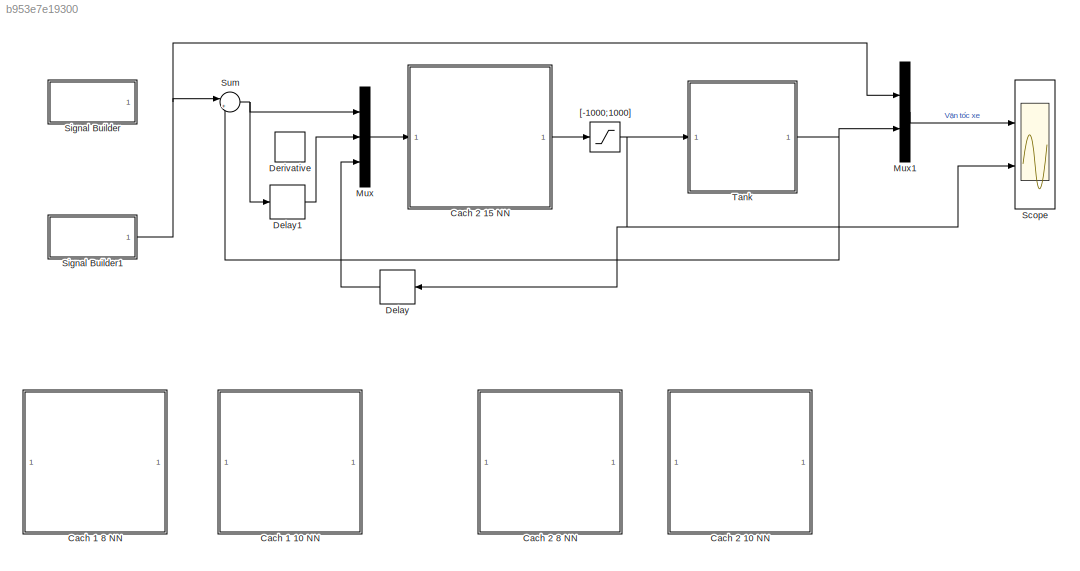
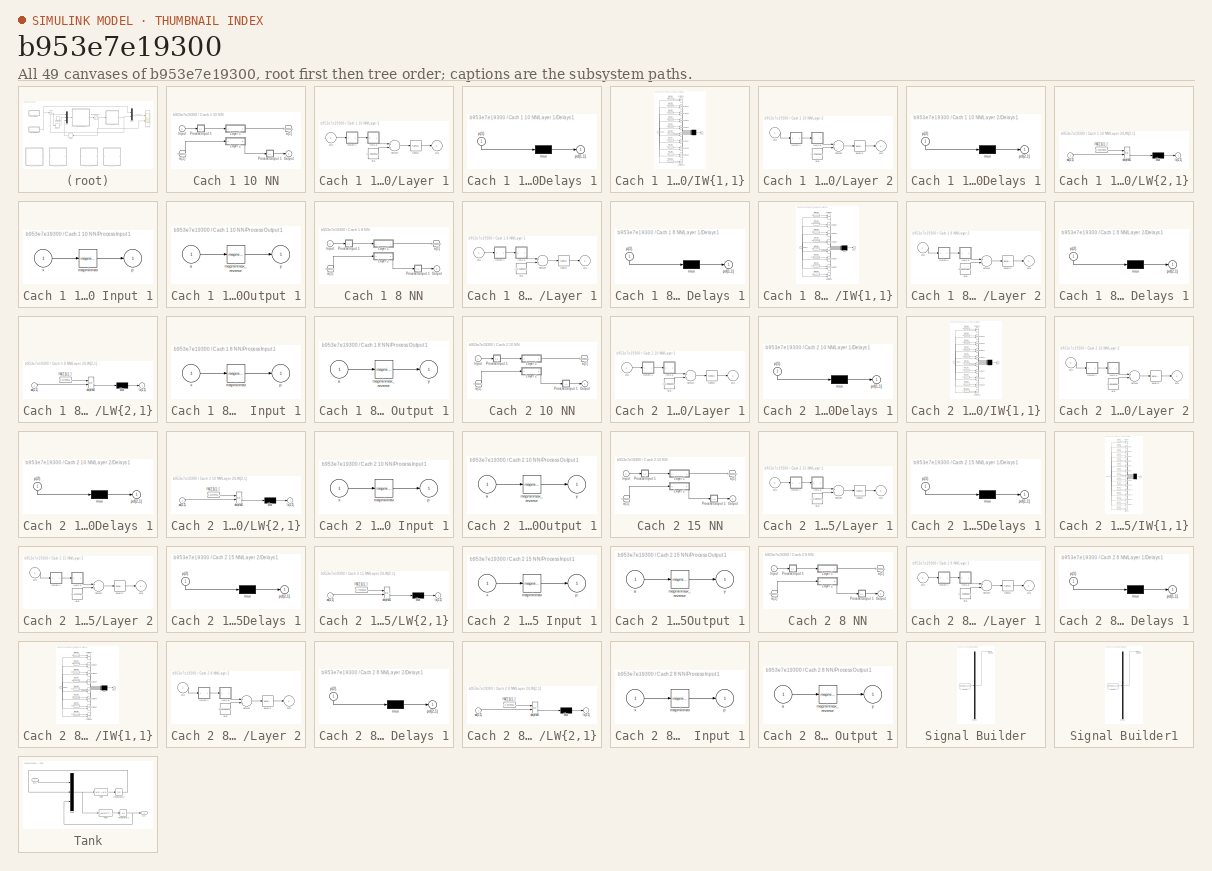
[diagram: thumbnail index - all 49 canvases of the model, root first then tree order]
MODEL slx_b953e7e19300
KIND model
CONFIG AbsTol = auto
CONFIG EnableMultiTasking = off
CONFIG FixedStep = 0.1
CONFIG MaxStep = auto
CONFIG MinStep = auto
CONFIG RelTol = 1e-3
CONFIG SampleTimeConstraint = Unconstrained
CONFIG Solver = ode4
CONFIG SolverName = ode4
CONFIG StartTime = 0.0
CONFIG StopTime = 3000
WORKSPACE source: MAT-file member
WORKSPACE MCOS: class17 (value not decoded)
BLOCK [SubSystem] Cach 1 10 NN
  Ports = [1, 1]
  RequestExecContextInheritance = off
BLOCK [From] Cach 1 10 NN/ a{1} 
  GotoTag = feedback1
BLOCK [Inport] Cach 1 10 NN/Input
  IconDisplay = Port number
  PortDimensions = 3
BLOCK [SubSystem] Cach 1 10 NN/Layer 1
  Ports = [1, 1]
  RequestExecContextInheritance = off
BLOCK [SubSystem] Cach 1 10 NN/Layer 1/Delays 1
  Ports = [1, 1]
  RequestExecContextInheritance = off
BLOCK [Mux] Cach 1 10 NN/Layer 1/Delays 1/mux
  Inputs = 1
  Ports = [1, 1]
BLOCK [Outport] Cach 1 10 NN/Layer 1/Delays 1/pd{1,1}
  IconDisplay = Port number
BLOCK [Inport] Cach 1 10 NN/Layer 1/Delays 1/p{1}
  IconDisplay = Port number
  PortDimensions = 3
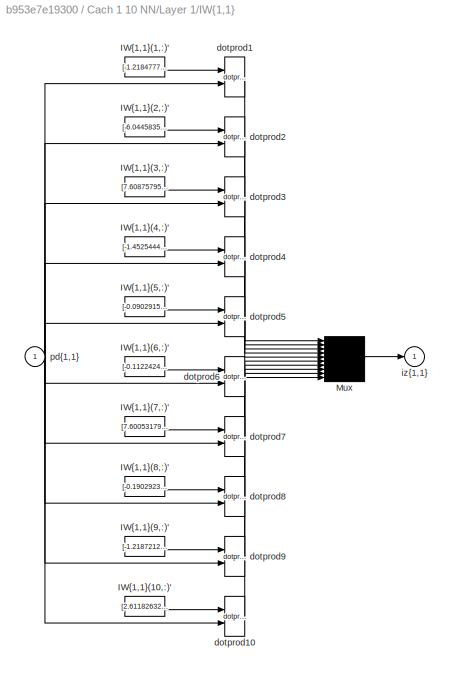
BLOCK [SubSystem] Cach 1 10 NN/Layer 1/IW{1,1}
  Ports = [1, 1]
  RequestExecContextInheritance = off
BLOCK [Constant] Cach 1 10 NN/Layer 1/IW{1,1}/IW{1,1}(1,:)'
  Value = [-1.218477747195196858598364997305907309055328369140625;3.875981635481588138958386480226181447505950927734375;-5.8782711885449199229469741112552583217620849609375]
BLOCK [Constant] Cach 1 10 NN/Layer 1/IW{1,1}/IW{1,1}(10,:)'
  Value = [2.611826329161540005685537835233844816684722900390625;0.225376082828238677446819338001660071313381195068359375;6.80639492578795834987204216304235160350799560546875]
BLOCK [Constant] Cach 1 10 NN/Layer 1/IW{1,1}/IW{1,1}(2,:)'
  Value = [-6.044583506610191392383057973347604274749755859375;-1.3317611473147310530151798957376740872859954833984375;4.5013770079174602045668507344089448451995849609375]
BLOCK [Constant] Cach 1 10 NN/Layer 1/IW{1,1}/IW{1,1}(3,:)'
  Value = [7.60875795240743979519493223051540553569793701171875;11.0522973127783377123023456078954041004180908203125;0.50033678100525735832349027987220324575901031494140625]
BLOCK [Constant] Cach 1 10 NN/Layer 1/IW{1,1}/IW{1,1}(4,:)'
  Value = [-1.4525444528493116624900949318544007837772369384765625;-0.1308001576776449959016446200621430762112140655517578125;3.112993220831782537061371840536594390869140625]
BLOCK [Constant] Cach 1 10 NN/Layer 1/IW{1,1}/IW{1,1}(5,:)'
  Value = [-0.0902915474895989167425369714692351408302783966064453125;-0.017332559376478116897057901724110706709325313568115234375;-1.0557927149483605777646744172670878469944000244140625]
BLOCK [Constant] Cach 1 10 NN/Layer 1/IW{1,1}/IW{1,1}(6,:)'
  Value = [-0.1122424268552905390894380843747057951986789703369140625;-0.046083329798854370806804325866323779337108135223388671875;-1.3280683409711404596720285553601570427417755126953125]
BLOCK [Constant] Cach 1 10 NN/Layer 1/IW{1,1}/IW{1,1}(7,:)'
  Value = [7.60053179159857705826652818359434604644775390625;8.22184538532787456688311067409813404083251953125;0.481166860897941528474319738961639814078807830810546875]
BLOCK [Constant] Cach 1 10 NN/Layer 1/IW{1,1}/IW{1,1}(8,:)'
  Value = [-0.1902923024092835480036711715001729317009449005126953125;0.324541502591513875142226197567651979625225067138671875;-2.442389780796051734768070673453621566295623779296875]
BLOCK [Constant] Cach 1 10 NN/Layer 1/IW{1,1}/IW{1,1}(9,:)'
  Value = [-1.21872120744540612946593682863749563694000244140625;4.0628187147851750893323696800507605075836181640625;-6.0333084174631093077323384932242333889007568359375]
BLOCK [Mux] Cach 1 10 NN/Layer 1/IW{1,1}/Mux
  Inputs = 10
  Ports = [10, 1]
BLOCK [Reference] Cach 1 10 NN/Layer 1/IW{1,1}/dotprod1  REF=neural/Weight Functions/dotprod
  Ports = [2, 1]
  SourceBlock = neural/Weight Functions/dotprod
  SourceProductBaseCode = Missing
  SourceProductName = MATLAB Runtime - Deep Learning Toolbox
  SourceType = DOTPROD
BLOCK [Reference] Cach 1 10 NN/Layer 1/IW{1,1}/dotprod10  REF=neural/Weight Functions/dotprod
  Ports = [2, 1]
  SourceBlock = neural/Weight Functions/dotprod
  SourceProductBaseCode = Missing
  SourceProductName = MATLAB Runtime - Deep Learning Toolbox
  SourceType = DOTPROD
BLOCK [Reference] Cach 1 10 NN/Layer 1/IW{1,1}/dotprod2  REF=neural/Weight Functions/dotprod
  Ports = [2, 1]
  SourceBlock = neural/Weight Functions/dotprod
  SourceProductBaseCode = Missing
  SourceProductName = MATLAB Runtime - Deep Learning Toolbox
  SourceType = DOTPROD
BLOCK [Reference] Cach 1 10 NN/Layer 1/IW{1,1}/dotprod3  REF=neural/Weight Functions/dotprod
  Ports = [2, 1]
  SourceBlock = neural/Weight Functions/dotprod
  SourceProductBaseCode = Missing
  SourceProductName = MATLAB Runtime - Deep Learning Toolbox
  SourceType = DOTPROD
BLOCK [Reference] Cach 1 10 NN/Layer 1/IW{1,1}/dotprod4  REF=neural/Weight Functions/dotprod
  Ports = [2, 1]
  SourceBlock = neural/Weight Functions/dotprod
  SourceProductBaseCode = Missing
  SourceProductName = MATLAB Runtime - Deep Learning Toolbox
  SourceType = DOTPROD
BLOCK [Reference] Cach 1 10 NN/Layer 1/IW{1,1}/dotprod5  REF=neural/Weight Functions/dotprod
  Ports = [2, 1]
  SourceBlock = neural/Weight Functions/dotprod
  SourceProductBaseCode = Missing
  SourceProductName = MATLAB Runtime - Deep Learning Toolbox
  SourceType = DOTPROD
BLOCK [Reference] Cach 1 10 NN/Layer 1/IW{1,1}/dotprod6  REF=neural/Weight Functions/dotprod
  Ports = [2, 1]
  SourceBlock = neural/Weight Functions/dotprod
  SourceProductBaseCode = Missing
  SourceProductName = MATLAB Runtime - Deep Learning Toolbox
  SourceType = DOTPROD
BLOCK [Reference] Cach 1 10 NN/Layer 1/IW{1,1}/dotprod7  REF=neural/Weight Functions/dotprod
  Ports = [2, 1]
  SourceBlock = neural/Weight Functions/dotprod
  SourceProductBaseCode = Missing
  SourceProductName = MATLAB Runtime - Deep Learning Toolbox
  SourceType = DOTPROD
BLOCK [Reference] Cach 1 10 NN/Layer 1/IW{1,1}/dotprod8  REF=neural/Weight Functions/dotprod
  Ports = [2, 1]
  SourceBlock = neural/Weight Functions/dotprod
  SourceProductBaseCode = Missing
  SourceProductName = MATLAB Runtime - Deep Learning Toolbox
  SourceType = DOTPROD
BLOCK [Reference] Cach 1 10 NN/Layer 1/IW{1,1}/dotprod9  REF=neural/Weight Functions/dotprod
  Ports = [2, 1]
  SourceBlock = neural/Weight Functions/dotprod
  SourceProductBaseCode = Missing
  SourceProductName = MATLAB Runtime - Deep Learning Toolbox
  SourceType = DOTPROD
BLOCK [Outport] Cach 1 10 NN/Layer 1/IW{1,1}/iz{1,1}
  IconDisplay = Port number
BLOCK [Inport] Cach 1 10 NN/Layer 1/IW{1,1}/pd{1,1}
  IconDisplay = Port number
  PortDimensions = 3
BLOCK [Outport] Cach 1 10 NN/Layer 1/a{1}
  IconDisplay = Port number
  InitialOutput = [0;0;0;0;0;0;0;0;0;0]
BLOCK [Constant] Cach 1 10 NN/Layer 1/b{1}
  Value = [5.44821512164440679981680659693665802478790283203125;3.045321254820318568334869269165210425853729248046875;0.29430251096517390241302791764610446989536285400390625;3.78563500257704088625132499146275222301483154296875;0.14484358740354508210401718315551988780498504638671875;0.237553061280461552673415326353278942406177520751953125;0.67338581118412499382230862465803511440753936767578125;-0.80433768907...<+147ch>
BLOCK [Sum] Cach 1 10 NN/Layer 1/netsum
  Inputs = 2
  Ports = [2, 1]
BLOCK [Inport] Cach 1 10 NN/Layer 1/p{1}
  IconDisplay = Port number
  PortDimensions = 3
BLOCK [Reference] Cach 1 10 NN/Layer 1/tansig  REF=neural/Transfer Functions/tansig
  Ports = [1, 1]
  SourceBlock = neural/Transfer Functions/tansig
  SourceProductBaseCode = Missing
  SourceProductName = MATLAB Runtime - Deep Learning Toolbox
  SourceType = TANSIG
BLOCK [SubSystem] Cach 1 10 NN/Layer 2
  Ports = [1, 1]
  RequestExecContextInheritance = off
BLOCK [SubSystem] Cach 1 10 NN/Layer 2/Delays 1
  Ports = [1, 1]
  RequestExecContextInheritance = off
BLOCK [Mux] Cach 1 10 NN/Layer 2/Delays 1/mux
  Inputs = 1
  Ports = [1, 1]
BLOCK [Outport] Cach 1 10 NN/Layer 2/Delays 1/pd{2,1}
  IconDisplay = Port number
BLOCK [Inport] Cach 1 10 NN/Layer 2/Delays 1/p{2}
  IconDisplay = Port number
  PortDimensions = 10
BLOCK [SubSystem] Cach 1 10 NN/Layer 2/LW{2,1}
  Ports = [1, 1]
  RequestExecContextInheritance = off
BLOCK [Constant] Cach 1 10 NN/Layer 2/LW{2,1}/IW{2,1}(1,:)'
  Value = [1.0554483061455268710915333940647542476654052734375;0.0174331438965131847729228553589564398862421512603759765625;2.036149696035788991821391391567885875701904296875;0.427234659290911256146472396721947006881237030029296875;-3.8057394904848980132783253793604671955108642578125;2.235681752442513214873542892746627330780029296875;-2.038622519267784038987656458630226552486419677734375;0.10703947518528618...<+156ch>
BLOCK [Mux] Cach 1 10 NN/Layer 2/LW{2,1}/Mux
  Inputs = 1
  Ports = [1, 1]
BLOCK [Inport] Cach 1 10 NN/Layer 2/LW{2,1}/ad{2,1}
  IconDisplay = Port number
  PortDimensions = 10
BLOCK [Reference] Cach 1 10 NN/Layer 2/LW{2,1}/dotprod1  REF=neural/Weight Functions/dotprod
  Ports = [2, 1]
  SourceBlock = neural/Weight Functions/dotprod
  SourceProductBaseCode = Missing
  SourceProductName = MATLAB Runtime - Deep Learning Toolbox
  SourceType = DOTPROD
BLOCK [Outport] Cach 1 10 NN/Layer 2/LW{2,1}/lz{2,1}
  IconDisplay = Port number
BLOCK [Inport] Cach 1 10 NN/Layer 2/a{1} 
  IconDisplay = Port number
  PortDimensions = 10
BLOCK [Outport] Cach 1 10 NN/Layer 2/a{2}
  IconDisplay = Port number
  InitialOutput = 0
BLOCK [Constant] Cach 1 10 NN/Layer 2/b{2}
  Value = -0.37357654303421494734749330746126361191272735595703125
BLOCK [Sum] Cach 1 10 NN/Layer 2/netsum
  Inputs = 2
  Ports = [2, 1]
BLOCK [Reference] Cach 1 10 NN/Layer 2/purelin  REF=neural/Transfer Functions/purelin
  Ports = [1, 1]
  SourceBlock = neural/Transfer Functions/purelin
  SourceProductBaseCode = Missing
  SourceProductName = MATLAB Runtime - Deep Learning Toolbox
  SourceType = PURELIN
BLOCK [Outport] Cach 1 10 NN/Output
  IconDisplay = Port number
  InitialOutput = 0
BLOCK [SubSystem] Cach 1 10 NN/Process Input 1
  Ports = [1, 1]
  RequestExecContextInheritance = off
BLOCK [Reference] Cach 1 10 NN/Process Input 1/mapminmax  REF=neural/Processing Functions/mapminmax
  Ports = [1, 1]
  SourceBlock = neural/Processing Functions/mapminmax
  SourceProductBaseCode = Missing
  SourceProductName = MATLAB Runtime - Deep Learning Toolbox
  SourceType = MAPMINMAX Preprocess
BLOCK [Outport] Cach 1 10 NN/Process Input 1/p
  IconDisplay = Port number
  PortDimensions = 3
BLOCK [Inport] Cach 1 10 NN/Process Input 1/x
  IconDisplay = Port number
  PortDimensions = 3
BLOCK [SubSystem] Cach 1 10 NN/Process Output 1
  Ports = [1, 1]
  RequestExecContextInheritance = off
BLOCK [Inport] Cach 1 10 NN/Process Output 1/a
  IconDisplay = Port number
  PortDimensions = 1
BLOCK [Reference] Cach 1 10 NN/Process Output 1/mapminmax_reverse  REF=neural/Processing Functions/mapminmax_reverse
  Ports = [1, 1]
  SourceBlock = neural/Processing Functions/mapminmax_reverse
  SourceProductBaseCode = Missing
  SourceProductName = MATLAB Runtime - Deep Learning Toolbox
  SourceType = MAPMINMAX Reverse Process
BLOCK [Outport] Cach 1 10 NN/Process Output 1/y
  IconDisplay = Port number
  PortDimensions = 1
BLOCK [Goto] Cach 1 10 NN/a{1}
  GotoTag = feedback1
BLOCK [SubSystem] Cach 1 8 NN
  Ports = [1, 1]
  RequestExecContextInheritance = off
BLOCK [From] Cach 1 8 NN/ a{1} 
  GotoTag = feedback1
BLOCK [Inport] Cach 1 8 NN/Input
  IconDisplay = Port number
  PortDimensions = 3
BLOCK [SubSystem] Cach 1 8 NN/Layer 1
  Ports = [1, 1]
  RequestExecContextInheritance = off
BLOCK [SubSystem] Cach 1 8 NN/Layer 1/Delays 1
  Ports = [1, 1]
  RequestExecContextInheritance = off
BLOCK [Mux] Cach 1 8 NN/Layer 1/Delays 1/mux
  Inputs = 1
  Ports = [1, 1]
BLOCK [Outport] Cach 1 8 NN/Layer 1/Delays 1/pd{1,1}
  IconDisplay = Port number
BLOCK [Inport] Cach 1 8 NN/Layer 1/Delays 1/p{1}
  IconDisplay = Port number
  PortDimensions = 3
BLOCK [SubSystem] Cach 1 8 NN/Layer 1/IW{1,1}
  Ports = [1, 1]
  RequestExecContextInheritance = off
BLOCK [Constant] Cach 1 8 NN/Layer 1/IW{1,1}/IW{1,1}(1,:)'
  Value = [-1.1543549543671296486735400321776978671550750732421875;-3.6039595787304126162098327768035233020782470703125;2.568534734753627812864351653843186795711517333984375]
BLOCK [Constant] Cach 1 8 NN/Layer 1/IW{1,1}/IW{1,1}(2,:)'
  Value = [0.16655656127839091329434495492023415863513946533203125;0.8246012697584303996478638509870506823062896728515625;-0.58334595636027086751340675618848763406276702880859375]
BLOCK [Constant] Cach 1 8 NN/Layer 1/IW{1,1}/IW{1,1}(3,:)'
  Value = [-4.82223808723217128857641000649891793727874755859375;2.125883925077209912757325582788325846195220947265625;4.77614544255203554712352342903614044189453125]
BLOCK [Constant] Cach 1 8 NN/Layer 1/IW{1,1}/IW{1,1}(4,:)'
  Value = [-0.37450281659189788019403977159527130424976348876953125;-0.98519347793093603460334861665614880621433258056640625;-0.75897088218314190388724682634347118437290191650390625]
BLOCK [Constant] Cach 1 8 NN/Layer 1/IW{1,1}/IW{1,1}(5,:)'
  Value = [-0.61165722132329680693629825327661819756031036376953125;-2.1238982020197596511934534646570682525634765625;-1.2990498703542225911178320529870688915252685546875]
BLOCK [Constant] Cach 1 8 NN/Layer 1/IW{1,1}/IW{1,1}(6,:)'
  Value = [3.365418918212411458767974181682802736759185791015625;0.8912226666165157240584449027664959430694580078125;-3.380252900576104391205944921239279210567474365234375]
BLOCK [Constant] Cach 1 8 NN/Layer 1/IW{1,1}/IW{1,1}(7,:)'
  Value = [22.536511851812509377168680657632648944854736328125;-0.186579411914395032479063729624613188207149505615234375;-1.7130865438913478460136730063823051750659942626953125]
BLOCK [Constant] Cach 1 8 NN/Layer 1/IW{1,1}/IW{1,1}(8,:)'
  Value = [-3.291377801937234170992496729013510048389434814453125;-2.254928277116480916930640887585468590259552001953125;-5.3388263641723145980222398065961897373199462890625]
BLOCK [Mux] Cach 1 8 NN/Layer 1/IW{1,1}/Mux
  Inputs = 8
  Ports = [8, 1]
BLOCK [Reference] Cach 1 8 NN/Layer 1/IW{1,1}/dotprod1  REF=neural/Weight Functions/dotprod
  Ports = [2, 1]
  SourceBlock = neural/Weight Functions/dotprod
  SourceProductBaseCode = Missing
  SourceProductName = MATLAB Runtime - Deep Learning Toolbox
  SourceType = DOTPROD
BLOCK [Reference] Cach 1 8 NN/Layer 1/IW{1,1}/dotprod2  REF=neural/Weight Functions/dotprod
  Ports = [2, 1]
  SourceBlock = neural/Weight Functions/dotprod
  SourceProductBaseCode = Missing
  SourceProductName = MATLAB Runtime - Deep Learning Toolbox
  SourceType = DOTPROD
BLOCK [Reference] Cach 1 8 NN/Layer 1/IW{1,1}/dotprod3  REF=neural/Weight Functions/dotprod
  Ports = [2, 1]
  SourceBlock = neural/Weight Functions/dotprod
  SourceProductBaseCode = Missing
  SourceProductName = MATLAB Runtime - Deep Learning Toolbox
  SourceType = DOTPROD
BLOCK [Reference] Cach 1 8 NN/Layer 1/IW{1,1}/dotprod4  REF=neural/Weight Functions/dotprod
  Ports = [2, 1]
  SourceBlock = neural/Weight Functions/dotprod
  SourceProductBaseCode = Missing
  SourceProductName = MATLAB Runtime - Deep Learning Toolbox
  SourceType = DOTPROD
BLOCK [Reference] Cach 1 8 NN/Layer 1/IW{1,1}/dotprod5  REF=neural/Weight Functions/dotprod
  Ports = [2, 1]
  SourceBlock = neural/Weight Functions/dotprod
  SourceProductBaseCode = Missing
  SourceProductName = MATLAB Runtime - Deep Learning Toolbox
  SourceType = DOTPROD
BLOCK [Reference] Cach 1 8 NN/Layer 1/IW{1,1}/dotprod6  REF=neural/Weight Functions/dotprod
  Ports = [2, 1]
  SourceBlock = neural/Weight Functions/dotprod
  SourceProductBaseCode = Missing
  SourceProductName = MATLAB Runtime - Deep Learning Toolbox
  SourceType = DOTPROD
BLOCK [Reference] Cach 1 8 NN/Layer 1/IW{1,1}/dotprod7  REF=neural/Weight Functions/dotprod
  Ports = [2, 1]
  SourceBlock = neural/Weight Functions/dotprod
  SourceProductBaseCode = Missing
  SourceProductName = MATLAB Runtime - Deep Learning Toolbox
  SourceType = DOTPROD
BLOCK [Reference] Cach 1 8 NN/Layer 1/IW{1,1}/dotprod8  REF=neural/Weight Functions/dotprod
  Ports = [2, 1]
  SourceBlock = neural/Weight Functions/dotprod
  SourceProductBaseCode = Missing
  SourceProductName = MATLAB Runtime - Deep Learning Toolbox
  SourceType = DOTPROD
BLOCK [Outport] Cach 1 8 NN/Layer 1/IW{1,1}/iz{1,1}
  IconDisplay = Port number
BLOCK [Inport] Cach 1 8 NN/Layer 1/IW{1,1}/pd{1,1}
  IconDisplay = Port number
  PortDimensions = 3
BLOCK [Outport] Cach 1 8 NN/Layer 1/a{1}
  IconDisplay = Port number
  InitialOutput = [0;0;0;0;0;0;0;0]
BLOCK [Constant] Cach 1 8 NN/Layer 1/b{1}
  Value = [-2.41325146358001507707058408414013683795928955078125;-0.215924722491929343970440413613687269389629364013671875;1.6429392877095032599044088783557526767253875732421875;0.52996977414056034572098496937542222440242767333984375;-0.82763456560653725357923349292832426726818084716796875;1.5030643116812572035456696539768017828464508056640625;5.6243347675620061210111089167185127735137939453125;-6.898561318...<+42ch>
BLOCK [Sum] Cach 1 8 NN/Layer 1/netsum
  Inputs = 2
  Ports = [2, 1]
BLOCK [Inport] Cach 1 8 NN/Layer 1/p{1}
  IconDisplay = Port number
  PortDimensions = 3
BLOCK [Reference] Cach 1 8 NN/Layer 1/tansig  REF=neural/Transfer Functions/tansig
  Ports = [1, 1]
  SourceBlock = neural/Transfer Functions/tansig
  SourceProductBaseCode = Missing
  SourceProductName = MATLAB Runtime - Deep Learning Toolbox
  SourceType = TANSIG
BLOCK [SubSystem] Cach 1 8 NN/Layer 2
  Ports = [1, 1]
  RequestExecContextInheritance = off
BLOCK [SubSystem] Cach 1 8 NN/Layer 2/Delays 1
  Ports = [1, 1]
  RequestExecContextInheritance = off
BLOCK [Mux] Cach 1 8 NN/Layer 2/Delays 1/mux
  Inputs = 1
  Ports = [1, 1]
BLOCK [Outport] Cach 1 8 NN/Layer 2/Delays 1/pd{2,1}
  IconDisplay = Port number
BLOCK [Inport] Cach 1 8 NN/Layer 2/Delays 1/p{2}
  IconDisplay = Port number
  PortDimensions = 8
BLOCK [SubSystem] Cach 1 8 NN/Layer 2/LW{2,1}
  Ports = [1, 1]
  RequestExecContextInheritance = off
BLOCK [Constant] Cach 1 8 NN/Layer 2/LW{2,1}/IW{2,1}(1,:)'
  Value = [0.1076981223212266358668642851625918410718441009521484375;-0.81326136350422129073223231898737139999866485595703125;0.030968436554898871870822318896898650564253330230712890625;-0.6268488682930015709615645391750149428844451904296875;-0.20545151257653859744323199265636503696441650390625;-0.007751050747128683353348588269682295504026114940643310546875;-0.00675177637117359459584253755792815354652702808...<+72ch>
BLOCK [Mux] Cach 1 8 NN/Layer 2/LW{2,1}/Mux
  Inputs = 1
  Ports = [1, 1]
BLOCK [Inport] Cach 1 8 NN/Layer 2/LW{2,1}/ad{2,1}
  IconDisplay = Port number
  PortDimensions = 8
BLOCK [Reference] Cach 1 8 NN/Layer 2/LW{2,1}/dotprod1  REF=neural/Weight Functions/dotprod
  Ports = [2, 1]
  SourceBlock = neural/Weight Functions/dotprod
  SourceProductBaseCode = Missing
  SourceProductName = MATLAB Runtime - Deep Learning Toolbox
  SourceType = DOTPROD
BLOCK [Outport] Cach 1 8 NN/Layer 2/LW{2,1}/lz{2,1}
  IconDisplay = Port number
BLOCK [Inport] Cach 1 8 NN/Layer 2/a{1} 
  IconDisplay = Port number
  PortDimensions = 8
BLOCK [Outport] Cach 1 8 NN/Layer 2/a{2}
  IconDisplay = Port number
  InitialOutput = 0
BLOCK [Constant] Cach 1 8 NN/Layer 2/b{2}
  Value = 0.06087638257517991036138482741080224514007568359375
BLOCK [Sum] Cach 1 8 NN/Layer 2/netsum
  Inputs = 2
  Ports = [2, 1]
BLOCK [Reference] Cach 1 8 NN/Layer 2/purelin  REF=neural/Transfer Functions/purelin
  Ports = [1, 1]
  SourceBlock = neural/Transfer Functions/purelin
  SourceProductBaseCode = Missing
  SourceProductName = MATLAB Runtime - Deep Learning Toolbox
  SourceType = PURELIN
BLOCK [Outport] Cach 1 8 NN/Output
  IconDisplay = Port number
  InitialOutput = 0
BLOCK [SubSystem] Cach 1 8 NN/Process Input 1
  Ports = [1, 1]
  RequestExecContextInheritance = off
BLOCK [Reference] Cach 1 8 NN/Process Input 1/mapminmax  REF=neural/Processing Functions/mapminmax
  Ports = [1, 1]
  SourceBlock = neural/Processing Functions/mapminmax
  SourceProductBaseCode = Missing
  SourceProductName = MATLAB Runtime - Deep Learning Toolbox
  SourceType = MAPMINMAX Preprocess
BLOCK [Outport] Cach 1 8 NN/Process Input 1/p
  IconDisplay = Port number
  PortDimensions = 3
BLOCK [Inport] Cach 1 8 NN/Process Input 1/x
  IconDisplay = Port number
  PortDimensions = 3
BLOCK [SubSystem] Cach 1 8 NN/Process Output 1
  Ports = [1, 1]
  RequestExecContextInheritance = off
BLOCK [Inport] Cach 1 8 NN/Process Output 1/a
  IconDisplay = Port number
  PortDimensions = 1
BLOCK [Reference] Cach 1 8 NN/Process Output 1/mapminmax_reverse  REF=neural/Processing Functions/mapminmax_reverse
  Ports = [1, 1]
  SourceBlock = neural/Processing Functions/mapminmax_reverse
  SourceProductBaseCode = Missing
  SourceProductName = MATLAB Runtime - Deep Learning Toolbox
  SourceType = MAPMINMAX Reverse Process
BLOCK [Outport] Cach 1 8 NN/Process Output 1/y
  IconDisplay = Port number
  PortDimensions = 1
BLOCK [Goto] Cach 1 8 NN/a{1}
  GotoTag = feedback1
BLOCK [SubSystem] Cach 2 10 NN
  Ports = [1, 1]
  RequestExecContextInheritance = off
BLOCK [From] Cach 2 10 NN/ a{1} 
  GotoTag = feedback1
BLOCK [Inport] Cach 2 10 NN/Input
  IconDisplay = Port number
  PortDimensions = 3
BLOCK [SubSystem] Cach 2 10 NN/Layer 1
  Ports = [1, 1]
  RequestExecContextInheritance = off
BLOCK [SubSystem] Cach 2 10 NN/Layer 1/Delays 1
  Ports = [1, 1]
  RequestExecContextInheritance = off
BLOCK [Mux] Cach 2 10 NN/Layer 1/Delays 1/mux
  Inputs = 1
  Ports = [1, 1]
BLOCK [Outport] Cach 2 10 NN/Layer 1/Delays 1/pd{1,1}
  IconDisplay = Port number
BLOCK [Inport] Cach 2 10 NN/Layer 1/Delays 1/p{1}
  IconDisplay = Port number
  PortDimensions = 3
BLOCK [SubSystem] Cach 2 10 NN/Layer 1/IW{1,1}
  Ports = [1, 1]
  RequestExecContextInheritance = off
BLOCK [Constant] Cach 2 10 NN/Layer 1/IW{1,1}/IW{1,1}(1,:)'
  Value = [1.53268547661494292100314851268194615840911865234375;-1.134284560272562192295708882738836109638214111328125;-3.731013875392873213598932125023566186428070068359375]
BLOCK [Constant] Cach 2 10 NN/Layer 1/IW{1,1}/IW{1,1}(10,:)'
  Value = [0.1928672527069593412019088418674073182046413421630859375;-0.79119144007236574811514628891018219292163848876953125;-4.23556687087780314726614960818551480770111083984375]
BLOCK [Constant] Cach 2 10 NN/Layer 1/IW{1,1}/IW{1,1}(2,:)'
  Value = [0.92212518277957400414379662834107875823974609375;-1.3024139391432492107725238383864052593708038330078125;1.2465989054671684499453476746566593647003173828125]
BLOCK [Constant] Cach 2 10 NN/Layer 1/IW{1,1}/IW{1,1}(3,:)'
  Value = [2.28544628953230510859384594368748366832733154296875;-4.34429374753287600441353788482956588268280029296875;-1.316809245499931169121055063442327082157135009765625]
BLOCK [Constant] Cach 2 10 NN/Layer 1/IW{1,1}/IW{1,1}(4,:)'
  Value = [0.91269238801450758291622378237661905586719512939453125;-0.38226356304833897237216433495632372796535491943359375;1.104492634038706899701764996279962360858917236328125]
BLOCK [Constant] Cach 2 10 NN/Layer 1/IW{1,1}/IW{1,1}(5,:)'
  Value = [0.363023893762867311263420333489193581044673919677734375;3.739112615335599354438045338611118495464324951171875;-0.158720224606039295167647651396691799163818359375]
BLOCK [Constant] Cach 2 10 NN/Layer 1/IW{1,1}/IW{1,1}(6,:)'
  Value = [0.241660378028786204662736736281658522784709930419921875;0.52886274986939685316400527881341986358165740966796875;-1.9564349986451021745637035564868710935115814208984375]
BLOCK [Constant] Cach 2 10 NN/Layer 1/IW{1,1}/IW{1,1}(7,:)'
  Value = [0.290392333378459432946527840613271109759807586669921875;3.758104962892060196821830686531029641628265380859375;-0.3098415628292381374109254466020502150058746337890625]
BLOCK [Constant] Cach 2 10 NN/Layer 1/IW{1,1}/IW{1,1}(8,:)'
  Value = [2.458007691768739011450861653429456055164337158203125;-1.532156285218286395632958374335430562496185302734375;-0.9691356999134741467827325323014520108699798583984375]
BLOCK [Constant] Cach 2 10 NN/Layer 1/IW{1,1}/IW{1,1}(9,:)'
  Value = [-4.43294135540581546450766836642287671566009521484375;-0.521106017184779002349159782170318067073822021484375;-0.74564876963294202116827591453329659998416900634765625]
BLOCK [Mux] Cach 2 10 NN/Layer 1/IW{1,1}/Mux
  Inputs = 10
  Ports = [10, 1]
BLOCK [Reference] Cach 2 10 NN/Layer 1/IW{1,1}/dotprod1  REF=neural/Weight Functions/dotprod
  Ports = [2, 1]
  SourceBlock = neural/Weight Functions/dotprod
  SourceProductBaseCode = Missing
  SourceProductName = MATLAB Runtime - Deep Learning Toolbox
  SourceType = DOTPROD
BLOCK [Reference] Cach 2 10 NN/Layer 1/IW{1,1}/dotprod10  REF=neural/Weight Functions/dotprod
  Ports = [2, 1]
  SourceBlock = neural/Weight Functions/dotprod
  SourceProductBaseCode = Missing
  SourceProductName = MATLAB Runtime - Deep Learning Toolbox
  SourceType = DOTPROD
BLOCK [Reference] Cach 2 10 NN/Layer 1/IW{1,1}/dotprod2  REF=neural/Weight Functions/dotprod
  Ports = [2, 1]
  SourceBlock = neural/Weight Functions/dotprod
  SourceProductBaseCode = Missing
  SourceProductName = MATLAB Runtime - Deep Learning Toolbox
  SourceType = DOTPROD
BLOCK [Reference] Cach 2 10 NN/Layer 1/IW{1,1}/dotprod3  REF=neural/Weight Functions/dotprod
  Ports = [2, 1]
  SourceBlock = neural/Weight Functions/dotprod
  SourceProductBaseCode = Missing
  SourceProductName = MATLAB Runtime - Deep Learning Toolbox
  SourceType = DOTPROD
BLOCK [Reference] Cach 2 10 NN/Layer 1/IW{1,1}/dotprod4  REF=neural/Weight Functions/dotprod
  Ports = [2, 1]
  SourceBlock = neural/Weight Functions/dotprod
  SourceProductBaseCode = Missing
  SourceProductName = MATLAB Runtime - Deep Learning Toolbox
  SourceType = DOTPROD
BLOCK [Reference] Cach 2 10 NN/Layer 1/IW{1,1}/dotprod5  REF=neural/Weight Functions/dotprod
  Ports = [2, 1]
  SourceBlock = neural/Weight Functions/dotprod
  SourceProductBaseCode = Missing
  SourceProductName = MATLAB Runtime - Deep Learning Toolbox
  SourceType = DOTPROD
BLOCK [Reference] Cach 2 10 NN/Layer 1/IW{1,1}/dotprod6  REF=neural/Weight Functions/dotprod
  Ports = [2, 1]
  SourceBlock = neural/Weight Functions/dotprod
  SourceProductBaseCode = Missing
  SourceProductName = MATLAB Runtime - Deep Learning Toolbox
  SourceType = DOTPROD
BLOCK [Reference] Cach 2 10 NN/Layer 1/IW{1,1}/dotprod7  REF=neural/Weight Functions/dotprod
  Ports = [2, 1]
  SourceBlock = neural/Weight Functions/dotprod
  SourceProductBaseCode = Missing
  SourceProductName = MATLAB Runtime - Deep Learning Toolbox
  SourceType = DOTPROD
BLOCK [Reference] Cach 2 10 NN/Layer 1/IW{1,1}/dotprod8  REF=neural/Weight Functions/dotprod
  Ports = [2, 1]
  SourceBlock = neural/Weight Functions/dotprod
  SourceProductBaseCode = Missing
  SourceProductName = MATLAB Runtime - Deep Learning Toolbox
  SourceType = DOTPROD
BLOCK [Reference] Cach 2 10 NN/Layer 1/IW{1,1}/dotprod9  REF=neural/Weight Functions/dotprod
  Ports = [2, 1]
  SourceBlock = neural/Weight Functions/dotprod
  SourceProductBaseCode = Missing
  SourceProductName = MATLAB Runtime - Deep Learning Toolbox
  SourceType = DOTPROD
BLOCK [Outport] Cach 2 10 NN/Layer 1/IW{1,1}/iz{1,1}
  IconDisplay = Port number
BLOCK [Inport] Cach 2 10 NN/Layer 1/IW{1,1}/pd{1,1}
  IconDisplay = Port number
  PortDimensions = 3
BLOCK [Outport] Cach 2 10 NN/Layer 1/a{1}
  IconDisplay = Port number
  InitialOutput = [0;0;0;0;0;0;0;0;0;0]
BLOCK [Constant] Cach 2 10 NN/Layer 1/b{1}
  Value = [-3.39852031061197923378358609625138342380523681640625;1.6602174287766489069184672189294360578060150146484375;-2.023520071901482975107455786201171576976776123046875;-0.9888450857385520098574716030270792543888092041015625;0.56613469766563395690894822109839878976345062255859375;0.381068235204388539028030891131493262946605682373046875;0.72318298412049897283537802650243975222110748291015625;1.00862813...<+151ch>
BLOCK [Sum] Cach 2 10 NN/Layer 1/netsum
  Inputs = 2
  Ports = [2, 1]
BLOCK [Inport] Cach 2 10 NN/Layer 1/p{1}
  IconDisplay = Port number
  PortDimensions = 3
BLOCK [Reference] Cach 2 10 NN/Layer 1/tansig  REF=neural/Transfer Functions/tansig
  Ports = [1, 1]
  SourceBlock = neural/Transfer Functions/tansig
  SourceProductBaseCode = Missing
  SourceProductName = MATLAB Runtime - Deep Learning Toolbox
  SourceType = TANSIG
BLOCK [SubSystem] Cach 2 10 NN/Layer 2
  Ports = [1, 1]
  RequestExecContextInheritance = off
BLOCK [SubSystem] Cach 2 10 NN/Layer 2/Delays 1
  Ports = [1, 1]
  RequestExecContextInheritance = off
BLOCK [Mux] Cach 2 10 NN/Layer 2/Delays 1/mux
  Inputs = 1
  Ports = [1, 1]
BLOCK [Outport] Cach 2 10 NN/Layer 2/Delays 1/pd{2,1}
  IconDisplay = Port number
BLOCK [Inport] Cach 2 10 NN/Layer 2/Delays 1/p{2}
  IconDisplay = Port number
  PortDimensions = 10
BLOCK [SubSystem] Cach 2 10 NN/Layer 2/LW{2,1}
  Ports = [1, 1]
  RequestExecContextInheritance = off
BLOCK [Constant] Cach 2 10 NN/Layer 2/LW{2,1}/IW{2,1}(1,:)'
  Value = [0.324497513231872869443606077766162343323230743408203125;1.2389824875704622542116339900530874729156494140625;-0.207674179531430358469634711582330055534839630126953125;0.49875280616681794132460936452844180166721343994140625;0.624020785199615346527934889309108257293701171875;-0.146922863385587298967749347866629250347614288330078125;-0.6284527308565397429873655710252933204174041748046875;-0.25337355...<+161ch>
BLOCK [Mux] Cach 2 10 NN/Layer 2/LW{2,1}/Mux
  Inputs = 1
  Ports = [1, 1]
BLOCK [Inport] Cach 2 10 NN/Layer 2/LW{2,1}/ad{2,1}
  IconDisplay = Port number
  PortDimensions = 10
BLOCK [Reference] Cach 2 10 NN/Layer 2/LW{2,1}/dotprod1  REF=neural/Weight Functions/dotprod
  Ports = [2, 1]
  SourceBlock = neural/Weight Functions/dotprod
  SourceProductBaseCode = Missing
  SourceProductName = MATLAB Runtime - Deep Learning Toolbox
  SourceType = DOTPROD
BLOCK [Outport] Cach 2 10 NN/Layer 2/LW{2,1}/lz{2,1}
  IconDisplay = Port number
BLOCK [Inport] Cach 2 10 NN/Layer 2/a{1} 
  IconDisplay = Port number
  PortDimensions = 10
BLOCK [Outport] Cach 2 10 NN/Layer 2/a{2}
  IconDisplay = Port number
  InitialOutput = 0
BLOCK [Constant] Cach 2 10 NN/Layer 2/b{2}
  Value = -0.60018392051491831207243876633583568036556243896484375
BLOCK [Sum] Cach 2 10 NN/Layer 2/netsum
  Inputs = 2
  Ports = [2, 1]
BLOCK [Reference] Cach 2 10 NN/Layer 2/purelin  REF=neural/Transfer Functions/purelin
  Ports = [1, 1]
  SourceBlock = neural/Transfer Functions/purelin
  SourceProductBaseCode = Missing
  SourceProductName = MATLAB Runtime - Deep Learning Toolbox
  SourceType = PURELIN
BLOCK [Outport] Cach 2 10 NN/Output
  IconDisplay = Port number
  InitialOutput = 0
BLOCK [SubSystem] Cach 2 10 NN/Process Input 1
  Ports = [1, 1]
  RequestExecContextInheritance = off
BLOCK [Reference] Cach 2 10 NN/Process Input 1/mapminmax  REF=neural/Processing Functions/mapminmax
  Ports = [1, 1]
  SourceBlock = neural/Processing Functions/mapminmax
  SourceProductBaseCode = Missing
  SourceProductName = MATLAB Runtime - Deep Learning Toolbox
  SourceType = MAPMINMAX Preprocess
BLOCK [Outport] Cach 2 10 NN/Process Input 1/p
  IconDisplay = Port number
  PortDimensions = 3
BLOCK [Inport] Cach 2 10 NN/Process Input 1/x
  IconDisplay = Port number
  PortDimensions = 3
BLOCK [SubSystem] Cach 2 10 NN/Process Output 1
  Ports = [1, 1]
  RequestExecContextInheritance = off
BLOCK [Inport] Cach 2 10 NN/Process Output 1/a
  IconDisplay = Port number
  PortDimensions = 1
BLOCK [Reference] Cach 2 10 NN/Process Output 1/mapminmax_reverse  REF=neural/Processing Functions/mapminmax_reverse
  Ports = [1, 1]
  SourceBlock = neural/Processing Functions/mapminmax_reverse
  SourceProductBaseCode = Missing
  SourceProductName = MATLAB Runtime - Deep Learning Toolbox
  SourceType = MAPMINMAX Reverse Process
BLOCK [Outport] Cach 2 10 NN/Process Output 1/y
  IconDisplay = Port number
  PortDimensions = 1
BLOCK [Goto] Cach 2 10 NN/a{1}
  GotoTag = feedback1
BLOCK [SubSystem] Cach 2 15 NN
  Ports = [1, 1]
  RequestExecContextInheritance = off
BLOCK [From] Cach 2 15 NN/ a{1} 
  GotoTag = feedback1
BLOCK [Inport] Cach 2 15 NN/Input
  IconDisplay = Port number
  PortDimensions = 3
BLOCK [SubSystem] Cach 2 15 NN/Layer 1
  Ports = [1, 1]
  RequestExecContextInheritance = off
BLOCK [SubSystem] Cach 2 15 NN/Layer 1/Delays 1
  Ports = [1, 1]
  RequestExecContextInheritance = off
BLOCK [Mux] Cach 2 15 NN/Layer 1/Delays 1/mux
  Inputs = 1
  Ports = [1, 1]
BLOCK [Outport] Cach 2 15 NN/Layer 1/Delays 1/pd{1,1}
  IconDisplay = Port number
BLOCK [Inport] Cach 2 15 NN/Layer 1/Delays 1/p{1}
  IconDisplay = Port number
  PortDimensions = 3
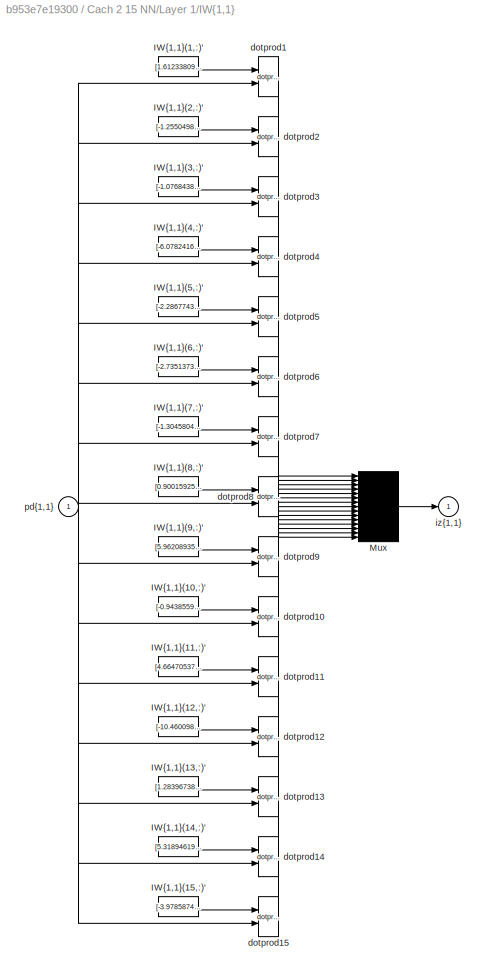
BLOCK [SubSystem] Cach 2 15 NN/Layer 1/IW{1,1}
  Ports = [1, 1]
  RequestExecContextInheritance = off
BLOCK [Constant] Cach 2 15 NN/Layer 1/IW{1,1}/IW{1,1}(1,:)'
  Value = [1.6123380921295851209151805960573256015777587890625;-0.482731965974698751242755179191590286791324615478515625;2.77359612900697616311163073987700045108795166015625]
BLOCK [Constant] Cach 2 15 NN/Layer 1/IW{1,1}/IW{1,1}(10,:)'
  Value = [-0.9438559039729719213340786154731176793575286865234375;5.44172262702003717294019224937073886394500732421875;0.036753794419101683266237756697591976262629032135009765625]
BLOCK [Constant] Cach 2 15 NN/Layer 1/IW{1,1}/IW{1,1}(11,:)'
  Value = [4.66470537094155002222350958618335425853729248046875;7.0418083037358254472337648621760308742523193359375;-1.14927384040440561108198380679823458194732666015625]
BLOCK [Constant] Cach 2 15 NN/Layer 1/IW{1,1}/IW{1,1}(12,:)'
  Value = [-10.460098457061722143635051907040178775787353515625;10.5893479641143795078050970914773643016815185546875;1.231015783713319766690119649865664541721343994140625]
BLOCK [Constant] Cach 2 15 NN/Layer 1/IW{1,1}/IW{1,1}(13,:)'
  Value = [1.28396738128934462253027959377504885196685791015625;-1.4881778361201087879095439348020590841770172119140625;-3.299196256427046503034716806723736226558685302734375]
BLOCK [Constant] Cach 2 15 NN/Layer 1/IW{1,1}/IW{1,1}(14,:)'
  Value = [5.3189461992734550221939571201801300048828125;-0.9097691429097920501334328946541063487529754638671875;-0.492222261262864890785095894898404367268085479736328125]
BLOCK [Constant] Cach 2 15 NN/Layer 1/IW{1,1}/IW{1,1}(15,:)'
  Value = [-3.978587470656079094766255366266705095767974853515625;-6.39464644038890117627715881098993122577667236328125;5.69841164058062599195864095236174762248992919921875]
BLOCK [Constant] Cach 2 15 NN/Layer 1/IW{1,1}/IW{1,1}(2,:)'
  Value = [-1.2550498457124554807506910947267897427082061767578125;-0.415565524009727738086183990162680856883525848388671875;-2.828619944571638455954598612152040004730224609375]
BLOCK [Constant] Cach 2 15 NN/Layer 1/IW{1,1}/IW{1,1}(3,:)'
  Value = [-1.07684389642003264242475779610686004161834716796875;-1.7987126510195157180760361370630562305450439453125;-0.637908611197168351480968340183608233928680419921875]
BLOCK [Constant] Cach 2 15 NN/Layer 1/IW{1,1}/IW{1,1}(4,:)'
  Value = [-6.07824166255135178715818256023339927196502685546875;3.23669125808914781572411811794154345989227294921875;-0.75579898609665219222364385132095776498317718505859375]
BLOCK [Constant] Cach 2 15 NN/Layer 1/IW{1,1}/IW{1,1}(5,:)'
  Value = [-2.286774325269135932359176877071149647235870361328125;-1.89227807239431200514445663429796695709228515625;-2.864540916439441087248951589572243392467498779296875]
BLOCK [Constant] Cach 2 15 NN/Layer 1/IW{1,1}/IW{1,1}(6,:)'
  Value = [-2.7351373569569599197848219773732125759124755859375;2.863944659810706117042400364880450069904327392578125;0.9807154100515245165325950438273139297962188720703125]
BLOCK [Constant] Cach 2 15 NN/Layer 1/IW{1,1}/IW{1,1}(7,:)'
  Value = [-1.304580456418289458042636397294700145721435546875;5.6622110414813988654714194126427173614501953125;-0.5885599493330169185156819366966374218463897705078125]
BLOCK [Constant] Cach 2 15 NN/Layer 1/IW{1,1}/IW{1,1}(8,:)'
  Value = [0.90015925249517680928335039425292052328586578369140625;-5.0173442297014556601197909913025796413421630859375;-0.60463049112952382824204278222168795764446258544921875]
BLOCK [Constant] Cach 2 15 NN/Layer 1/IW{1,1}/IW{1,1}(9,:)'
  Value = [5.9620893575123492524880930432118475437164306640625;-2.094702388687790683974299099645577371120452880859375;0.4977848485151790125513571183546446263790130615234375]
BLOCK [Mux] Cach 2 15 NN/Layer 1/IW{1,1}/Mux
  Inputs = 15
  Ports = [15, 1]
BLOCK [Reference] Cach 2 15 NN/Layer 1/IW{1,1}/dotprod1  REF=neural/Weight Functions/dotprod
  Ports = [2, 1]
  SourceBlock = neural/Weight Functions/dotprod
  SourceProductBaseCode = Missing
  SourceProductName = MATLAB Runtime - Deep Learning Toolbox
  SourceType = DOTPROD
BLOCK [Reference] Cach 2 15 NN/Layer 1/IW{1,1}/dotprod10  REF=neural/Weight Functions/dotprod
  Ports = [2, 1]
  SourceBlock = neural/Weight Functions/dotprod
  SourceProductBaseCode = Missing
  SourceProductName = MATLAB Runtime - Deep Learning Toolbox
  SourceType = DOTPROD
BLOCK [Reference] Cach 2 15 NN/Layer 1/IW{1,1}/dotprod11  REF=neural/Weight Functions/dotprod
  Ports = [2, 1]
  SourceBlock = neural/Weight Functions/dotprod
  SourceProductBaseCode = Missing
  SourceProductName = MATLAB Runtime - Deep Learning Toolbox
  SourceType = DOTPROD
BLOCK [Reference] Cach 2 15 NN/Layer 1/IW{1,1}/dotprod12  REF=neural/Weight Functions/dotprod
  Ports = [2, 1]
  SourceBlock = neural/Weight Functions/dotprod
  SourceProductBaseCode = Missing
  SourceProductName = MATLAB Runtime - Deep Learning Toolbox
  SourceType = DOTPROD
BLOCK [Reference] Cach 2 15 NN/Layer 1/IW{1,1}/dotprod13  REF=neural/Weight Functions/dotprod
  Ports = [2, 1]
  SourceBlock = neural/Weight Functions/dotprod
  SourceProductBaseCode = Missing
  SourceProductName = MATLAB Runtime - Deep Learning Toolbox
  SourceType = DOTPROD
BLOCK [Reference] Cach 2 15 NN/Layer 1/IW{1,1}/dotprod14  REF=neural/Weight Functions/dotprod
  Ports = [2, 1]
  SourceBlock = neural/Weight Functions/dotprod
  SourceProductBaseCode = Missing
  SourceProductName = MATLAB Runtime - Deep Learning Toolbox
  SourceType = DOTPROD
BLOCK [Reference] Cach 2 15 NN/Layer 1/IW{1,1}/dotprod15  REF=neural/Weight Functions/dotprod
  Ports = [2, 1]
  SourceBlock = neural/Weight Functions/dotprod
  SourceProductBaseCode = Missing
  SourceProductName = MATLAB Runtime - Deep Learning Toolbox
  SourceType = DOTPROD
BLOCK [Reference] Cach 2 15 NN/Layer 1/IW{1,1}/dotprod2  REF=neural/Weight Functions/dotprod
  Ports = [2, 1]
  SourceBlock = neural/Weight Functions/dotprod
  SourceProductBaseCode = Missing
  SourceProductName = MATLAB Runtime - Deep Learning Toolbox
  SourceType = DOTPROD
BLOCK [Reference] Cach 2 15 NN/Layer 1/IW{1,1}/dotprod3  REF=neural/Weight Functions/dotprod
  Ports = [2, 1]
  SourceBlock = neural/Weight Functions/dotprod
  SourceProductBaseCode = Missing
  SourceProductName = MATLAB Runtime - Deep Learning Toolbox
  SourceType = DOTPROD
BLOCK [Reference] Cach 2 15 NN/Layer 1/IW{1,1}/dotprod4  REF=neural/Weight Functions/dotprod
  Ports = [2, 1]
  SourceBlock = neural/Weight Functions/dotprod
  SourceProductBaseCode = Missing
  SourceProductName = MATLAB Runtime - Deep Learning Toolbox
  SourceType = DOTPROD
BLOCK [Reference] Cach 2 15 NN/Layer 1/IW{1,1}/dotprod5  REF=neural/Weight Functions/dotprod
  Ports = [2, 1]
  SourceBlock = neural/Weight Functions/dotprod
  SourceProductBaseCode = Missing
  SourceProductName = MATLAB Runtime - Deep Learning Toolbox
  SourceType = DOTPROD
BLOCK [Reference] Cach 2 15 NN/Layer 1/IW{1,1}/dotprod6  REF=neural/Weight Functions/dotprod
  Ports = [2, 1]
  SourceBlock = neural/Weight Functions/dotprod
  SourceProductBaseCode = Missing
  SourceProductName = MATLAB Runtime - Deep Learning Toolbox
  SourceType = DOTPROD
BLOCK [Reference] Cach 2 15 NN/Layer 1/IW{1,1}/dotprod7  REF=neural/Weight Functions/dotprod
  Ports = [2, 1]
  SourceBlock = neural/Weight Functions/dotprod
  SourceProductBaseCode = Missing
  SourceProductName = MATLAB Runtime - Deep Learning Toolbox
  SourceType = DOTPROD
BLOCK [Reference] Cach 2 15 NN/Layer 1/IW{1,1}/dotprod8  REF=neural/Weight Functions/dotprod
  Ports = [2, 1]
  SourceBlock = neural/Weight Functions/dotprod
  SourceProductBaseCode = Missing
  SourceProductName = MATLAB Runtime - Deep Learning Toolbox
  SourceType = DOTPROD
BLOCK [Reference] Cach 2 15 NN/Layer 1/IW{1,1}/dotprod9  REF=neural/Weight Functions/dotprod
  Ports = [2, 1]
  SourceBlock = neural/Weight Functions/dotprod
  SourceProductBaseCode = Missing
  SourceProductName = MATLAB Runtime - Deep Learning Toolbox
  SourceType = DOTPROD
BLOCK [Outport] Cach 2 15 NN/Layer 1/IW{1,1}/iz{1,1}
  IconDisplay = Port number
BLOCK [Inport] Cach 2 15 NN/Layer 1/IW{1,1}/pd{1,1}
  IconDisplay = Port number
  PortDimensions = 3
BLOCK [Outport] Cach 2 15 NN/Layer 1/a{1}
  IconDisplay = Port number
  InitialOutput = [0;0;0;0;0;0;0;0;0;0;0;0;0;0;0]
BLOCK [Constant] Cach 2 15 NN/Layer 1/b{1}
  Value = [-3.5457647345930372040356814977712929248809814453125;3.991748863572153194212432936183176934719085693359375;3.19566432245094489417169825173914432525634765625;3.1883053476019558303278245148248970508575439453125;3.673463147421368812928221814217977225780487060546875;0.223976355243214853008026921088458038866519927978515625;1.6669596595711839714937241296865977346897125244140625;-1.331846451816704579584...<+405ch>
BLOCK [Sum] Cach 2 15 NN/Layer 1/netsum
  Inputs = 2
  Ports = [2, 1]
BLOCK [Inport] Cach 2 15 NN/Layer 1/p{1}
  IconDisplay = Port number
  PortDimensions = 3
BLOCK [Reference] Cach 2 15 NN/Layer 1/tansig  REF=neural/Transfer Functions/tansig
  Ports = [1, 1]
  SourceBlock = neural/Transfer Functions/tansig
  SourceProductBaseCode = Missing
  SourceProductName = MATLAB Runtime - Deep Learning Toolbox
  SourceType = TANSIG
BLOCK [SubSystem] Cach 2 15 NN/Layer 2
  Ports = [1, 1]
  RequestExecContextInheritance = off
BLOCK [SubSystem] Cach 2 15 NN/Layer 2/Delays 1
  Ports = [1, 1]
  RequestExecContextInheritance = off
BLOCK [Mux] Cach 2 15 NN/Layer 2/Delays 1/mux
  Inputs = 1
  Ports = [1, 1]
BLOCK [Outport] Cach 2 15 NN/Layer 2/Delays 1/pd{2,1}
  IconDisplay = Port number
BLOCK [Inport] Cach 2 15 NN/Layer 2/Delays 1/p{2}
  IconDisplay = Port number
  PortDimensions = 15
BLOCK [SubSystem] Cach 2 15 NN/Layer 2/LW{2,1}
  Ports = [1, 1]
  RequestExecContextInheritance = off
BLOCK [Constant] Cach 2 15 NN/Layer 2/LW{2,1}/IW{2,1}(1,:)'
  Value = [2.7334863313116937177937870728783309459686279296875;2.04664772112103232615254455595277249813079833984375;1.235566477681565356050441550905816256999969482421875;-1.34320425907937401888148087891750037670135498046875;0.0852066311026203060396966293410514481365680694580078125;2.8886411492093255759527892223559319972991943359375;-2.614951441062483894484103075228631496429443359375;-1.609115276601664756839...<+428ch>
BLOCK [Mux] Cach 2 15 NN/Layer 2/LW{2,1}/Mux
  Inputs = 1
  Ports = [1, 1]
BLOCK [Inport] Cach 2 15 NN/Layer 2/LW{2,1}/ad{2,1}
  IconDisplay = Port number
  PortDimensions = 15
BLOCK [Reference] Cach 2 15 NN/Layer 2/LW{2,1}/dotprod1  REF=neural/Weight Functions/dotprod
  Ports = [2, 1]
  SourceBlock = neural/Weight Functions/dotprod
  SourceProductBaseCode = Missing
  SourceProductName = MATLAB Runtime - Deep Learning Toolbox
  SourceType = DOTPROD
BLOCK [Outport] Cach 2 15 NN/Layer 2/LW{2,1}/lz{2,1}
  IconDisplay = Port number
BLOCK [Inport] Cach 2 15 NN/Layer 2/a{1} 
  IconDisplay = Port number
  PortDimensions = 15
BLOCK [Outport] Cach 2 15 NN/Layer 2/a{2}
  IconDisplay = Port number
  InitialOutput = 0
BLOCK [Constant] Cach 2 15 NN/Layer 2/b{2}
  Value = -0.2477678498331073175808825226340559311211109161376953125
BLOCK [Sum] Cach 2 15 NN/Layer 2/netsum
  Inputs = 2
  Ports = [2, 1]
BLOCK [Reference] Cach 2 15 NN/Layer 2/purelin  REF=neural/Transfer Functions/purelin
  Ports = [1, 1]
  SourceBlock = neural/Transfer Functions/purelin
  SourceProductBaseCode = Missing
  SourceProductName = MATLAB Runtime - Deep Learning Toolbox
  SourceType = PURELIN
BLOCK [Outport] Cach 2 15 NN/Output
  IconDisplay = Port number
  InitialOutput = 0
BLOCK [SubSystem] Cach 2 15 NN/Process Input 1
  Ports = [1, 1]
  RequestExecContextInheritance = off
BLOCK [Reference] Cach 2 15 NN/Process Input 1/mapminmax  REF=neural/Processing Functions/mapminmax
  Ports = [1, 1]
  SourceBlock = neural/Processing Functions/mapminmax
  SourceProductBaseCode = Missing
  SourceProductName = MATLAB Runtime - Deep Learning Toolbox
  SourceType = MAPMINMAX Preprocess
BLOCK [Outport] Cach 2 15 NN/Process Input 1/p
  IconDisplay = Port number
  PortDimensions = 3
BLOCK [Inport] Cach 2 15 NN/Process Input 1/x
  IconDisplay = Port number
  PortDimensions = 3
BLOCK [SubSystem] Cach 2 15 NN/Process Output 1
  Ports = [1, 1]
  RequestExecContextInheritance = off
BLOCK [Inport] Cach 2 15 NN/Process Output 1/a
  IconDisplay = Port number
  PortDimensions = 1
BLOCK [Reference] Cach 2 15 NN/Process Output 1/mapminmax_reverse  REF=neural/Processing Functions/mapminmax_reverse
  Ports = [1, 1]
  SourceBlock = neural/Processing Functions/mapminmax_reverse
  SourceProductBaseCode = Missing
  SourceProductName = MATLAB Runtime - Deep Learning Toolbox
  SourceType = MAPMINMAX Reverse Process
BLOCK [Outport] Cach 2 15 NN/Process Output 1/y
  IconDisplay = Port number
  PortDimensions = 1
BLOCK [Goto] Cach 2 15 NN/a{1}
  GotoTag = feedback1
BLOCK [SubSystem] Cach 2 8 NN
  Ports = [1, 1]
  RequestExecContextInheritance = off
BLOCK [From] Cach 2 8 NN/ a{1} 
  GotoTag = feedback1
BLOCK [Inport] Cach 2 8 NN/Input
  IconDisplay = Port number
  PortDimensions = 3
BLOCK [SubSystem] Cach 2 8 NN/Layer 1
  Ports = [1, 1]
  RequestExecContextInheritance = off
BLOCK [SubSystem] Cach 2 8 NN/Layer 1/Delays 1
  Ports = [1, 1]
  RequestExecContextInheritance = off
BLOCK [Mux] Cach 2 8 NN/Layer 1/Delays 1/mux
  Inputs = 1
  Ports = [1, 1]
BLOCK [Outport] Cach 2 8 NN/Layer 1/Delays 1/pd{1,1}
  IconDisplay = Port number
BLOCK [Inport] Cach 2 8 NN/Layer 1/Delays 1/p{1}
  IconDisplay = Port number
  PortDimensions = 3
BLOCK [SubSystem] Cach 2 8 NN/Layer 1/IW{1,1}
  Ports = [1, 1]
  RequestExecContextInheritance = off
BLOCK [Constant] Cach 2 8 NN/Layer 1/IW{1,1}/IW{1,1}(1,:)'
  Value = [-1.9691447685437832859633999760262668132781982421875;2.73428454512366325701577807194553315639495849609375;-0.5664656138242865068832543329335749149322509765625]
BLOCK [Constant] Cach 2 8 NN/Layer 1/IW{1,1}/IW{1,1}(2,:)'
  Value = [-3.68220250262863491030884688370861113071441650390625;-2.734187492503763028395269429893232882022857666015625;4.6515134163990570215219122474081814289093017578125]
BLOCK [Constant] Cach 2 8 NN/Layer 1/IW{1,1}/IW{1,1}(3,:)'
  Value = [2.870556765951546740467392737627960741519927978515625;-1.1761076681289137635388897251687012612819671630859375;1.5576232670856529072267449009814299643039703369140625]
BLOCK [Constant] Cach 2 8 NN/Layer 1/IW{1,1}/IW{1,1}(4,:)'
  Value = [-2.818594199968923685872823625686578452587127685546875;-7.77769360693300537690220153308473527431488037109375;0.050354222614589834450260497078488697297871112823486328125]
BLOCK [Constant] Cach 2 8 NN/Layer 1/IW{1,1}/IW{1,1}(5,:)'
  Value = [0.3173723111487960490961768300621770322322845458984375;-0.906867524039252970169400214217603206634521484375;-0.96770288742386278979523694943054579198360443115234375]
BLOCK [Constant] Cach 2 8 NN/Layer 1/IW{1,1}/IW{1,1}(6,:)'
  Value = [-1.052683641683872739491789616295136511325836181640625;1.3155912730710299651804007226019166409969329833984375;1.5302484383132834988572312795440666377544403076171875]
BLOCK [Constant] Cach 2 8 NN/Layer 1/IW{1,1}/IW{1,1}(7,:)'
  Value = [7.3696407614809658070953446440398693084716796875;-0.88591384905742731614708418419468216598033905029296875;2.313261573675148508044685513596050441265106201171875]
BLOCK [Constant] Cach 2 8 NN/Layer 1/IW{1,1}/IW{1,1}(8,:)'
  Value = [7.15294841922632773645318593480624258518218994140625;6.36554185935758543024576283642090857028961181640625;-4.76724966344742195900607839575968682765960693359375]
BLOCK [Mux] Cach 2 8 NN/Layer 1/IW{1,1}/Mux
  Inputs = 8
  Ports = [8, 1]
BLOCK [Reference] Cach 2 8 NN/Layer 1/IW{1,1}/dotprod1  REF=neural/Weight Functions/dotprod
  Ports = [2, 1]
  SourceBlock = neural/Weight Functions/dotprod
  SourceProductBaseCode = Missing
  SourceProductName = MATLAB Runtime - Deep Learning Toolbox
  SourceType = DOTPROD
BLOCK [Reference] Cach 2 8 NN/Layer 1/IW{1,1}/dotprod2  REF=neural/Weight Functions/dotprod
  Ports = [2, 1]
  SourceBlock = neural/Weight Functions/dotprod
  SourceProductBaseCode = Missing
  SourceProductName = MATLAB Runtime - Deep Learning Toolbox
  SourceType = DOTPROD
BLOCK [Reference] Cach 2 8 NN/Layer 1/IW{1,1}/dotprod3  REF=neural/Weight Functions/dotprod
  Ports = [2, 1]
  SourceBlock = neural/Weight Functions/dotprod
  SourceProductBaseCode = Missing
  SourceProductName = MATLAB Runtime - Deep Learning Toolbox
  SourceType = DOTPROD
BLOCK [Reference] Cach 2 8 NN/Layer 1/IW{1,1}/dotprod4  REF=neural/Weight Functions/dotprod
  Ports = [2, 1]
  SourceBlock = neural/Weight Functions/dotprod
  SourceProductBaseCode = Missing
  SourceProductName = MATLAB Runtime - Deep Learning Toolbox
  SourceType = DOTPROD
BLOCK [Reference] Cach 2 8 NN/Layer 1/IW{1,1}/dotprod5  REF=neural/Weight Functions/dotprod
  Ports = [2, 1]
  SourceBlock = neural/Weight Functions/dotprod
  SourceProductBaseCode = Missing
  SourceProductName = MATLAB Runtime - Deep Learning Toolbox
  SourceType = DOTPROD
BLOCK [Reference] Cach 2 8 NN/Layer 1/IW{1,1}/dotprod6  REF=neural/Weight Functions/dotprod
  Ports = [2, 1]
  SourceBlock = neural/Weight Functions/dotprod
  SourceProductBaseCode = Missing
  SourceProductName = MATLAB Runtime - Deep Learning Toolbox
  SourceType = DOTPROD
BLOCK [Reference] Cach 2 8 NN/Layer 1/IW{1,1}/dotprod7  REF=neural/Weight Functions/dotprod
  Ports = [2, 1]
  SourceBlock = neural/Weight Functions/dotprod
  SourceProductBaseCode = Missing
  SourceProductName = MATLAB Runtime - Deep Learning Toolbox
  SourceType = DOTPROD
BLOCK [Reference] Cach 2 8 NN/Layer 1/IW{1,1}/dotprod8  REF=neural/Weight Functions/dotprod
  Ports = [2, 1]
  SourceBlock = neural/Weight Functions/dotprod
  SourceProductBaseCode = Missing
  SourceProductName = MATLAB Runtime - Deep Learning Toolbox
  SourceType = DOTPROD
BLOCK [Outport] Cach 2 8 NN/Layer 1/IW{1,1}/iz{1,1}
  IconDisplay = Port number
BLOCK [Inport] Cach 2 8 NN/Layer 1/IW{1,1}/pd{1,1}
  IconDisplay = Port number
  PortDimensions = 3
BLOCK [Outport] Cach 2 8 NN/Layer 1/a{1}
  IconDisplay = Port number
  InitialOutput = [0;0;0;0;0;0;0;0]
BLOCK [Constant] Cach 2 8 NN/Layer 1/b{1}
  Value = [0.7128006443529517621726654397207312285900115966796875;3.190964714329093343536669635795988142490386962890625;-0.493514713220160328166485896872472949326038360595703125;-0.561690349826860835236175262252800166606903076171875;0.41783309383760069977142848074436187744140625;1.2860587994251069243745178027893416583538055419921875;5.6791274268204201547405318706296384334564208984375;6.614287771213410493942...<+29ch>
BLOCK [Sum] Cach 2 8 NN/Layer 1/netsum
  Inputs = 2
  Ports = [2, 1]
BLOCK [Inport] Cach 2 8 NN/Layer 1/p{1}
  IconDisplay = Port number
  PortDimensions = 3
BLOCK [Reference] Cach 2 8 NN/Layer 1/tansig  REF=neural/Transfer Functions/tansig
  Ports = [1, 1]
  SourceBlock = neural/Transfer Functions/tansig
  SourceProductBaseCode = Missing
  SourceProductName = MATLAB Runtime - Deep Learning Toolbox
  SourceType = TANSIG
BLOCK [SubSystem] Cach 2 8 NN/Layer 2
  Ports = [1, 1]
  RequestExecContextInheritance = off
BLOCK [SubSystem] Cach 2 8 NN/Layer 2/Delays 1
  Ports = [1, 1]
  RequestExecContextInheritance = off
BLOCK [Mux] Cach 2 8 NN/Layer 2/Delays 1/mux
  Inputs = 1
  Ports = [1, 1]
BLOCK [Outport] Cach 2 8 NN/Layer 2/Delays 1/pd{2,1}
  IconDisplay = Port number
BLOCK [Inport] Cach 2 8 NN/Layer 2/Delays 1/p{2}
  IconDisplay = Port number
  PortDimensions = 8
BLOCK [SubSystem] Cach 2 8 NN/Layer 2/LW{2,1}
  Ports = [1, 1]
  RequestExecContextInheritance = off
BLOCK [Constant] Cach 2 8 NN/Layer 2/LW{2,1}/IW{2,1}(1,:)'
  Value = [-0.5019901347266528812696151362615637481212615966796875;0.087159994327489387355711869531660340726375579833984375;-0.2043829377085053244922363546720589511096477508544921875;-0.01423462377620647416331944867806669208221137523651123046875;-1.050400229756455861007680141483433544635772705078125;0.370291043843490985665312109631486237049102783203125;0.03470203188077508604791887592000421136617660522460937...<+64ch>
BLOCK [Mux] Cach 2 8 NN/Layer 2/LW{2,1}/Mux
  Inputs = 1
  Ports = [1, 1]
BLOCK [Inport] Cach 2 8 NN/Layer 2/LW{2,1}/ad{2,1}
  IconDisplay = Port number
  PortDimensions = 8
BLOCK [Reference] Cach 2 8 NN/Layer 2/LW{2,1}/dotprod1  REF=neural/Weight Functions/dotprod
  Ports = [2, 1]
  SourceBlock = neural/Weight Functions/dotprod
  SourceProductBaseCode = Missing
  SourceProductName = MATLAB Runtime - Deep Learning Toolbox
  SourceType = DOTPROD
BLOCK [Outport] Cach 2 8 NN/Layer 2/LW{2,1}/lz{2,1}
  IconDisplay = Port number
BLOCK [Inport] Cach 2 8 NN/Layer 2/a{1} 
  IconDisplay = Port number
  PortDimensions = 8
BLOCK [Outport] Cach 2 8 NN/Layer 2/a{2}
  IconDisplay = Port number
  InitialOutput = 0
BLOCK [Constant] Cach 2 8 NN/Layer 2/b{2}
  Value = 0.1994809436040320960170646458209375850856304168701171875
BLOCK [Sum] Cach 2 8 NN/Layer 2/netsum
  Inputs = 2
  Ports = [2, 1]
BLOCK [Reference] Cach 2 8 NN/Layer 2/purelin  REF=neural/Transfer Functions/purelin
  Ports = [1, 1]
  SourceBlock = neural/Transfer Functions/purelin
  SourceProductBaseCode = Missing
  SourceProductName = MATLAB Runtime - Deep Learning Toolbox
  SourceType = PURELIN
BLOCK [Outport] Cach 2 8 NN/Output
  IconDisplay = Port number
  InitialOutput = 0
BLOCK [SubSystem] Cach 2 8 NN/Process Input 1
  Ports = [1, 1]
  RequestExecContextInheritance = off
BLOCK [Reference] Cach 2 8 NN/Process Input 1/mapminmax  REF=neural/Processing Functions/mapminmax
  Ports = [1, 1]
  SourceBlock = neural/Processing Functions/mapminmax
  SourceProductBaseCode = Missing
  SourceProductName = MATLAB Runtime - Deep Learning Toolbox
  SourceType = MAPMINMAX Preprocess
BLOCK [Outport] Cach 2 8 NN/Process Input 1/p
  IconDisplay = Port number
  PortDimensions = 3
BLOCK [Inport] Cach 2 8 NN/Process Input 1/x
  IconDisplay = Port number
  PortDimensions = 3
BLOCK [SubSystem] Cach 2 8 NN/Process Output 1
  Ports = [1, 1]
  RequestExecContextInheritance = off
BLOCK [Inport] Cach 2 8 NN/Process Output 1/a
  IconDisplay = Port number
  PortDimensions = 1
BLOCK [Reference] Cach 2 8 NN/Process Output 1/mapminmax_reverse  REF=neural/Processing Functions/mapminmax_reverse
  Ports = [1, 1]
  SourceBlock = neural/Processing Functions/mapminmax_reverse
  SourceProductBaseCode = Missing
  SourceProductName = MATLAB Runtime - Deep Learning Toolbox
  SourceType = MAPMINMAX Reverse Process
BLOCK [Outport] Cach 2 8 NN/Process Output 1/y
  IconDisplay = Port number
  PortDimensions = 1
BLOCK [Goto] Cach 2 8 NN/a{1}
  GotoTag = feedback1
BLOCK [Delay] Delay
  DelayLength = 1
  InputPortMap = u0
  Ports = [1, 1]
BLOCK [Delay] Delay1
  DelayLength = 1
  InputPortMap = u0
  Ports = [1, 1]
BLOCK [Derivative] Derivative
BLOCK [Mux] Mux
  DisplayOption = bar
  Inputs = 3
  Ports = [3, 1]
BLOCK [Mux] Mux1
  DisplayOption = bar
  Inputs = 2
  Ports = [2, 1]
BLOCK [Scope] Scope
  Floating = off
  NumInputPorts = 2
  Ports = [2]
  ScopeSpecificationString = Simulink.scopes.TimeScopeBlockCfg('CurrentConfiguration', extmgr.ConfigurationSet(extmgr.Configuration('Core','General UI',true,'FigureColor',[1 1 1]),extmgr.Configuration('Core','Source UI',true),extmgr.Configuration('Sources','WiredSimulink',true),extmgr.Configuration('Visuals','Time Domain',true,'SerializedDisplays',{struct('MinYLimReal','-3.50753','MaxYLimReal','31.56777','YLabelReal','','MinY...<+2342ch>
BLOCK [SubSystem] Signal Builder
  ClipboardFcn = sigbuilder_block('clipboard');
  CloseFcn = sigbuilder_block('close');
  ContinueFcn = sigbuilder_block('continue');
  CopyFcn = sigbuilder_block('copy');
  DeleteFcn = sigbuilder_block('delete');
  LoadFcn = sigbuilder_block('load');
  MaskHideContents = on
  ModelCloseFcn = sigbuilder_block('modelClose');
  NameChangeFcn = sigbuilder_block('namechange');
  OpenFcn = sigbuilder_block('open',[538.8 144.6 550.8 400.2 ]);
  PauseFcn = sigbuilder_block('pause');
  Ports = [0, 1]
  PreSaveFcn = sigbuilder_block('preSave');
  RequestExecContextInheritance = off
  StartFcn = sigbuilder_block('start');
  StopFcn = sigbuilder_block('stop');
  Tag = STV Subsys
BLOCK [Demux] Signal Builder/Demux
  Outputs = 1
  Ports = [1, 1]
  Tag = STV Demux
BLOCK [FromWorkspace] Signal Builder/FromWs
  SampleTime = 0
  Tag = STV FromWs
  VariableName = tuvar
  ZeroCross = on
BLOCK [Outport] Signal Builder/Signal 1
  IconDisplay = Port number
  Tag = STV Outport
BLOCK [SubSystem] Signal Builder1
  ClipboardFcn = sigbuilder_block('clipboard');
  CloseFcn = sigbuilder_block('close');
  ContinueFcn = sigbuilder_block('continue');
  CopyFcn = sigbuilder_block('copy');
  DeleteFcn = sigbuilder_block('delete');
  LoadFcn = sigbuilder_block('load');
  MaskHideContents = on
  ModelCloseFcn = sigbuilder_block('modelClose');
  NameChangeFcn = sigbuilder_block('namechange');
  OpenFcn = sigbuilder_block('open',[538.8 144.6 550.8 400.2 ]);
  PauseFcn = sigbuilder_block('pause');
  Ports = [0, 1]
  PreSaveFcn = sigbuilder_block('preSave');
  RequestExecContextInheritance = off
  StartFcn = sigbuilder_block('start');
  StopFcn = sigbuilder_block('stop');
  Tag = STV Subsys
BLOCK [Demux] Signal Builder1/Demux
  Outputs = 1
  Ports = [1, 1]
  Tag = STV Demux
BLOCK [FromWorkspace] Signal Builder1/FromWs
  SampleTime = 0
  Tag = STV FromWs
  VariableName = tuvar
  ZeroCross = on
BLOCK [Outport] Signal Builder1/Signal 1
  IconDisplay = Port number
  Tag = STV Outport
BLOCK [Sum] Sum
  IconShape = round
  InputSameDT = off
  Inputs = |+-
  OutDataTypeStr = Inherit: Inherit via internal rule
  Ports = [2, 1]
  SaturateOnIntegerOverflow = off
BLOCK [SubSystem] Tank
  Ports = [1, 1]
  RequestExecContextInheritance = off
BLOCK [Integrator] Tank/Integrator1
  LimitOutput = on
  LowerSaturationLimit = -100
  Ports = [1, 1]
  UpperSaturationLimit = 100
BLOCK [Integrator] Tank/Integrator2
  Ports = [1, 1]
BLOCK [Mux] Tank/Mux
  DisplayOption = bar
  Inputs = 3
  Ports = [3, 1]
BLOCK [Fcn] Tank/fdot
  Expr = (-u(2) + u(1) )/t
BLOCK [Inport] Tank/u(t)
  IconDisplay = Port number
BLOCK [Outport] Tank/v(t)
  IconDisplay = Port number
BLOCK [Fcn] Tank/vdot
  Expr = (-Ap*u(3)^2 - d + u(2))/m
BLOCK [Saturate] [-1000;1000]
  InputPortMap = u0
  LowerLimit = -1000
  Ports = [1, 1]
  UpperLimit = 1000
LINE Cach 1 10 NN/ a{1} :1 -> Cach 1 10 NN/Layer 2:1
LINE Cach 1 10 NN/Input:1 -> Cach 1 10 NN/Process Input 1:1
LINE Cach 1 10 NN/Layer 1/Delays 1/mux:1 -> Cach 1 10 NN/Layer 1/Delays 1/pd{1,1}:1
LINE Cach 1 10 NN/Layer 1/Delays 1/p{1}:1 -> Cach 1 10 NN/Layer 1/Delays 1/mux:1
LINE Cach 1 10 NN/Layer 1/Delays 1:1 -> Cach 1 10 NN/Layer 1/IW{1,1}:1
LINE Cach 1 10 NN/Layer 1/IW{1,1}/IW{1,1}(1,:)':1 -> Cach 1 10 NN/Layer 1/IW{1,1}/dotprod1:1
LINE Cach 1 10 NN/Layer 1/IW{1,1}/IW{1,1}(10,:)':1 -> Cach 1 10 NN/Layer 1/IW{1,1}/dotprod10:1
LINE Cach 1 10 NN/Layer 1/IW{1,1}/IW{1,1}(2,:)':1 -> Cach 1 10 NN/Layer 1/IW{1,1}/dotprod2:1
LINE Cach 1 10 NN/Layer 1/IW{1,1}/IW{1,1}(3,:)':1 -> Cach 1 10 NN/Layer 1/IW{1,1}/dotprod3:1
LINE Cach 1 10 NN/Layer 1/IW{1,1}/IW{1,1}(4,:)':1 -> Cach 1 10 NN/Layer 1/IW{1,1}/dotprod4:1
LINE Cach 1 10 NN/Layer 1/IW{1,1}/IW{1,1}(5,:)':1 -> Cach 1 10 NN/Layer 1/IW{1,1}/dotprod5:1
LINE Cach 1 10 NN/Layer 1/IW{1,1}/IW{1,1}(6,:)':1 -> Cach 1 10 NN/Layer 1/IW{1,1}/dotprod6:1
LINE Cach 1 10 NN/Layer 1/IW{1,1}/IW{1,1}(7,:)':1 -> Cach 1 10 NN/Layer 1/IW{1,1}/dotprod7:1
LINE Cach 1 10 NN/Layer 1/IW{1,1}/IW{1,1}(8,:)':1 -> Cach 1 10 NN/Layer 1/IW{1,1}/dotprod8:1
LINE Cach 1 10 NN/Layer 1/IW{1,1}/IW{1,1}(9,:)':1 -> Cach 1 10 NN/Layer 1/IW{1,1}/dotprod9:1
LINE Cach 1 10 NN/Layer 1/IW{1,1}/Mux:1 -> Cach 1 10 NN/Layer 1/IW{1,1}/iz{1,1}:1
LINE Cach 1 10 NN/Layer 1/IW{1,1}/dotprod10:1 -> Cach 1 10 NN/Layer 1/IW{1,1}/Mux:10
LINE Cach 1 10 NN/Layer 1/IW{1,1}/dotprod1:1 -> Cach 1 10 NN/Layer 1/IW{1,1}/Mux:1
LINE Cach 1 10 NN/Layer 1/IW{1,1}/dotprod2:1 -> Cach 1 10 NN/Layer 1/IW{1,1}/Mux:2
LINE Cach 1 10 NN/Layer 1/IW{1,1}/dotprod3:1 -> Cach 1 10 NN/Layer 1/IW{1,1}/Mux:3
LINE Cach 1 10 NN/Layer 1/IW{1,1}/dotprod4:1 -> Cach 1 10 NN/Layer 1/IW{1,1}/Mux:4
LINE Cach 1 10 NN/Layer 1/IW{1,1}/dotprod5:1 -> Cach 1 10 NN/Layer 1/IW{1,1}/Mux:5
LINE Cach 1 10 NN/Layer 1/IW{1,1}/dotprod6:1 -> Cach 1 10 NN/Layer 1/IW{1,1}/Mux:6
LINE Cach 1 10 NN/Layer 1/IW{1,1}/dotprod7:1 -> Cach 1 10 NN/Layer 1/IW{1,1}/Mux:7
LINE Cach 1 10 NN/Layer 1/IW{1,1}/dotprod8:1 -> Cach 1 10 NN/Layer 1/IW{1,1}/Mux:8
LINE Cach 1 10 NN/Layer 1/IW{1,1}/dotprod9:1 -> Cach 1 10 NN/Layer 1/IW{1,1}/Mux:9
NET Cach 1 10 NN/Layer 1/IW{1,1}/pd{1,1}:1 -> Cach 1 10 NN/Layer 1/IW{1,1}/dotprod10:2, Cach 1 10 NN/Layer 1/IW{1,1}/dotprod1:2, Cach 1 10 NN/Layer 1/IW{1,1}/dotprod2:2, Cach 1 10 NN/Layer 1/IW{1,1}/dotprod3:2, Cach 1 10 NN/Layer 1/IW{1,1}/dotprod4:2, Cach 1 10 NN/Layer 1/IW{1,1}/dotprod5:2, Cach 1 10 NN/Layer 1/IW{1,1}/dotprod6:2, Cach 1 10 NN/Layer 1/IW{1,1}/dotprod7:2, Cach 1 10 NN/Layer 1/IW{1,1}/dotprod8:2, Cach 1 10 NN/Layer 1/IW{1,1}/dotprod9:2
LINE Cach 1 10 NN/Layer 1/IW{1,1}:1 -> Cach 1 10 NN/Layer 1/netsum:1
LINE Cach 1 10 NN/Layer 1/b{1}:1 -> Cach 1 10 NN/Layer 1/netsum:2
LINE Cach 1 10 NN/Layer 1/netsum:1 -> Cach 1 10 NN/Layer 1/tansig:1
LINE Cach 1 10 NN/Layer 1/p{1}:1 -> Cach 1 10 NN/Layer 1/Delays 1:1
LINE Cach 1 10 NN/Layer 1/tansig:1 -> Cach 1 10 NN/Layer 1/a{1}:1
LINE Cach 1 10 NN/Layer 1:1 -> Cach 1 10 NN/a{1}:1
LINE Cach 1 10 NN/Layer 2/Delays 1/mux:1 -> Cach 1 10 NN/Layer 2/Delays 1/pd{2,1}:1
LINE Cach 1 10 NN/Layer 2/Delays 1/p{2}:1 -> Cach 1 10 NN/Layer 2/Delays 1/mux:1
LINE Cach 1 10 NN/Layer 2/Delays 1:1 -> Cach 1 10 NN/Layer 2/LW{2,1}:1
LINE Cach 1 10 NN/Layer 2/LW{2,1}/IW{2,1}(1,:)':1 -> Cach 1 10 NN/Layer 2/LW{2,1}/dotprod1:1
LINE Cach 1 10 NN/Layer 2/LW{2,1}/Mux:1 -> Cach 1 10 NN/Layer 2/LW{2,1}/lz{2,1}:1
LINE Cach 1 10 NN/Layer 2/LW{2,1}/ad{2,1}:1 -> Cach 1 10 NN/Layer 2/LW{2,1}/dotprod1:2
LINE Cach 1 10 NN/Layer 2/LW{2,1}/dotprod1:1 -> Cach 1 10 NN/Layer 2/LW{2,1}/Mux:1
LINE Cach 1 10 NN/Layer 2/LW{2,1}:1 -> Cach 1 10 NN/Layer 2/netsum:1
LINE Cach 1 10 NN/Layer 2/a{1} :1 -> Cach 1 10 NN/Layer 2/Delays 1:1
LINE Cach 1 10 NN/Layer 2/b{2}:1 -> Cach 1 10 NN/Layer 2/netsum:2
LINE Cach 1 10 NN/Layer 2/netsum:1 -> Cach 1 10 NN/Layer 2/purelin:1
LINE Cach 1 10 NN/Layer 2/purelin:1 -> Cach 1 10 NN/Layer 2/a{2}:1
LINE Cach 1 10 NN/Layer 2:1 -> Cach 1 10 NN/Process Output 1:1
LINE Cach 1 10 NN/Process Input 1/mapminmax:1 -> Cach 1 10 NN/Process Input 1/p:1
LINE Cach 1 10 NN/Process Input 1/x:1 -> Cach 1 10 NN/Process Input 1/mapminmax:1
LINE Cach 1 10 NN/Process Input 1:1 -> Cach 1 10 NN/Layer 1:1
LINE Cach 1 10 NN/Process Output 1/a:1 -> Cach 1 10 NN/Process Output 1/mapminmax_reverse:1
LINE Cach 1 10 NN/Process Output 1/mapminmax_reverse:1 -> Cach 1 10 NN/Process Output 1/y:1
LINE Cach 1 10 NN/Process Output 1:1 -> Cach 1 10 NN/Output:1
LINE Cach 1 8 NN/ a{1} :1 -> Cach 1 8 NN/Layer 2:1
LINE Cach 1 8 NN/Input:1 -> Cach 1 8 NN/Process Input 1:1
LINE Cach 1 8 NN/Layer 1/Delays 1/mux:1 -> Cach 1 8 NN/Layer 1/Delays 1/pd{1,1}:1
LINE Cach 1 8 NN/Layer 1/Delays 1/p{1}:1 -> Cach 1 8 NN/Layer 1/Delays 1/mux:1
LINE Cach 1 8 NN/Layer 1/Delays 1:1 -> Cach 1 8 NN/Layer 1/IW{1,1}:1
LINE Cach 1 8 NN/Layer 1/IW{1,1}/IW{1,1}(1,:)':1 -> Cach 1 8 NN/Layer 1/IW{1,1}/dotprod1:1
LINE Cach 1 8 NN/Layer 1/IW{1,1}/IW{1,1}(2,:)':1 -> Cach 1 8 NN/Layer 1/IW{1,1}/dotprod2:1
LINE Cach 1 8 NN/Layer 1/IW{1,1}/IW{1,1}(3,:)':1 -> Cach 1 8 NN/Layer 1/IW{1,1}/dotprod3:1
LINE Cach 1 8 NN/Layer 1/IW{1,1}/IW{1,1}(4,:)':1 -> Cach 1 8 NN/Layer 1/IW{1,1}/dotprod4:1
LINE Cach 1 8 NN/Layer 1/IW{1,1}/IW{1,1}(5,:)':1 -> Cach 1 8 NN/Layer 1/IW{1,1}/dotprod5:1
LINE Cach 1 8 NN/Layer 1/IW{1,1}/IW{1,1}(6,:)':1 -> Cach 1 8 NN/Layer 1/IW{1,1}/dotprod6:1
LINE Cach 1 8 NN/Layer 1/IW{1,1}/IW{1,1}(7,:)':1 -> Cach 1 8 NN/Layer 1/IW{1,1}/dotprod7:1
LINE Cach 1 8 NN/Layer 1/IW{1,1}/IW{1,1}(8,:)':1 -> Cach 1 8 NN/Layer 1/IW{1,1}/dotprod8:1
LINE Cach 1 8 NN/Layer 1/IW{1,1}/Mux:1 -> Cach 1 8 NN/Layer 1/IW{1,1}/iz{1,1}:1
LINE Cach 1 8 NN/Layer 1/IW{1,1}/dotprod1:1 -> Cach 1 8 NN/Layer 1/IW{1,1}/Mux:1
LINE Cach 1 8 NN/Layer 1/IW{1,1}/dotprod2:1 -> Cach 1 8 NN/Layer 1/IW{1,1}/Mux:2
LINE Cach 1 8 NN/Layer 1/IW{1,1}/dotprod3:1 -> Cach 1 8 NN/Layer 1/IW{1,1}/Mux:3
LINE Cach 1 8 NN/Layer 1/IW{1,1}/dotprod4:1 -> Cach 1 8 NN/Layer 1/IW{1,1}/Mux:4
LINE Cach 1 8 NN/Layer 1/IW{1,1}/dotprod5:1 -> Cach 1 8 NN/Layer 1/IW{1,1}/Mux:5
LINE Cach 1 8 NN/Layer 1/IW{1,1}/dotprod6:1 -> Cach 1 8 NN/Layer 1/IW{1,1}/Mux:6
LINE Cach 1 8 NN/Layer 1/IW{1,1}/dotprod7:1 -> Cach 1 8 NN/Layer 1/IW{1,1}/Mux:7
LINE Cach 1 8 NN/Layer 1/IW{1,1}/dotprod8:1 -> Cach 1 8 NN/Layer 1/IW{1,1}/Mux:8
NET Cach 1 8 NN/Layer 1/IW{1,1}/pd{1,1}:1 -> Cach 1 8 NN/Layer 1/IW{1,1}/dotprod1:2, Cach 1 8 NN/Layer 1/IW{1,1}/dotprod2:2, Cach 1 8 NN/Layer 1/IW{1,1}/dotprod3:2, Cach 1 8 NN/Layer 1/IW{1,1}/dotprod4:2, Cach 1 8 NN/Layer 1/IW{1,1}/dotprod5:2, Cach 1 8 NN/Layer 1/IW{1,1}/dotprod6:2, Cach 1 8 NN/Layer 1/IW{1,1}/dotprod7:2, Cach 1 8 NN/Layer 1/IW{1,1}/dotprod8:2
LINE Cach 1 8 NN/Layer 1/IW{1,1}:1 -> Cach 1 8 NN/Layer 1/netsum:1
LINE Cach 1 8 NN/Layer 1/b{1}:1 -> Cach 1 8 NN/Layer 1/netsum:2
LINE Cach 1 8 NN/Layer 1/netsum:1 -> Cach 1 8 NN/Layer 1/tansig:1
LINE Cach 1 8 NN/Layer 1/p{1}:1 -> Cach 1 8 NN/Layer 1/Delays 1:1
LINE Cach 1 8 NN/Layer 1/tansig:1 -> Cach 1 8 NN/Layer 1/a{1}:1
LINE Cach 1 8 NN/Layer 1:1 -> Cach 1 8 NN/a{1}:1
LINE Cach 1 8 NN/Layer 2/Delays 1/mux:1 -> Cach 1 8 NN/Layer 2/Delays 1/pd{2,1}:1
LINE Cach 1 8 NN/Layer 2/Delays 1/p{2}:1 -> Cach 1 8 NN/Layer 2/Delays 1/mux:1
LINE Cach 1 8 NN/Layer 2/Delays 1:1 -> Cach 1 8 NN/Layer 2/LW{2,1}:1
LINE Cach 1 8 NN/Layer 2/LW{2,1}/IW{2,1}(1,:)':1 -> Cach 1 8 NN/Layer 2/LW{2,1}/dotprod1:1
LINE Cach 1 8 NN/Layer 2/LW{2,1}/Mux:1 -> Cach 1 8 NN/Layer 2/LW{2,1}/lz{2,1}:1
LINE Cach 1 8 NN/Layer 2/LW{2,1}/ad{2,1}:1 -> Cach 1 8 NN/Layer 2/LW{2,1}/dotprod1:2
LINE Cach 1 8 NN/Layer 2/LW{2,1}/dotprod1:1 -> Cach 1 8 NN/Layer 2/LW{2,1}/Mux:1
LINE Cach 1 8 NN/Layer 2/LW{2,1}:1 -> Cach 1 8 NN/Layer 2/netsum:1
LINE Cach 1 8 NN/Layer 2/a{1} :1 -> Cach 1 8 NN/Layer 2/Delays 1:1
LINE Cach 1 8 NN/Layer 2/b{2}:1 -> Cach 1 8 NN/Layer 2/netsum:2
LINE Cach 1 8 NN/Layer 2/netsum:1 -> Cach 1 8 NN/Layer 2/purelin:1
LINE Cach 1 8 NN/Layer 2/purelin:1 -> Cach 1 8 NN/Layer 2/a{2}:1
LINE Cach 1 8 NN/Layer 2:1 -> Cach 1 8 NN/Process Output 1:1
LINE Cach 1 8 NN/Process Input 1/mapminmax:1 -> Cach 1 8 NN/Process Input 1/p:1
LINE Cach 1 8 NN/Process Input 1/x:1 -> Cach 1 8 NN/Process Input 1/mapminmax:1
LINE Cach 1 8 NN/Process Input 1:1 -> Cach 1 8 NN/Layer 1:1
LINE Cach 1 8 NN/Process Output 1/a:1 -> Cach 1 8 NN/Process Output 1/mapminmax_reverse:1
LINE Cach 1 8 NN/Process Output 1/mapminmax_reverse:1 -> Cach 1 8 NN/Process Output 1/y:1
LINE Cach 1 8 NN/Process Output 1:1 -> Cach 1 8 NN/Output:1
LINE Cach 2 10 NN/ a{1} :1 -> Cach 2 10 NN/Layer 2:1
LINE Cach 2 10 NN/Input:1 -> Cach 2 10 NN/Process Input 1:1
LINE Cach 2 10 NN/Layer 1/Delays 1/mux:1 -> Cach 2 10 NN/Layer 1/Delays 1/pd{1,1}:1
LINE Cach 2 10 NN/Layer 1/Delays 1/p{1}:1 -> Cach 2 10 NN/Layer 1/Delays 1/mux:1
LINE Cach 2 10 NN/Layer 1/Delays 1:1 -> Cach 2 10 NN/Layer 1/IW{1,1}:1
LINE Cach 2 10 NN/Layer 1/IW{1,1}/IW{1,1}(1,:)':1 -> Cach 2 10 NN/Layer 1/IW{1,1}/dotprod1:1
LINE Cach 2 10 NN/Layer 1/IW{1,1}/IW{1,1}(10,:)':1 -> Cach 2 10 NN/Layer 1/IW{1,1}/dotprod10:1
LINE Cach 2 10 NN/Layer 1/IW{1,1}/IW{1,1}(2,:)':1 -> Cach 2 10 NN/Layer 1/IW{1,1}/dotprod2:1
LINE Cach 2 10 NN/Layer 1/IW{1,1}/IW{1,1}(3,:)':1 -> Cach 2 10 NN/Layer 1/IW{1,1}/dotprod3:1
LINE Cach 2 10 NN/Layer 1/IW{1,1}/IW{1,1}(4,:)':1 -> Cach 2 10 NN/Layer 1/IW{1,1}/dotprod4:1
LINE Cach 2 10 NN/Layer 1/IW{1,1}/IW{1,1}(5,:)':1 -> Cach 2 10 NN/Layer 1/IW{1,1}/dotprod5:1
LINE Cach 2 10 NN/Layer 1/IW{1,1}/IW{1,1}(6,:)':1 -> Cach 2 10 NN/Layer 1/IW{1,1}/dotprod6:1
LINE Cach 2 10 NN/Layer 1/IW{1,1}/IW{1,1}(7,:)':1 -> Cach 2 10 NN/Layer 1/IW{1,1}/dotprod7:1
LINE Cach 2 10 NN/Layer 1/IW{1,1}/IW{1,1}(8,:)':1 -> Cach 2 10 NN/Layer 1/IW{1,1}/dotprod8:1
LINE Cach 2 10 NN/Layer 1/IW{1,1}/IW{1,1}(9,:)':1 -> Cach 2 10 NN/Layer 1/IW{1,1}/dotprod9:1
LINE Cach 2 10 NN/Layer 1/IW{1,1}/Mux:1 -> Cach 2 10 NN/Layer 1/IW{1,1}/iz{1,1}:1
LINE Cach 2 10 NN/Layer 1/IW{1,1}/dotprod10:1 -> Cach 2 10 NN/Layer 1/IW{1,1}/Mux:10
LINE Cach 2 10 NN/Layer 1/IW{1,1}/dotprod1:1 -> Cach 2 10 NN/Layer 1/IW{1,1}/Mux:1
LINE Cach 2 10 NN/Layer 1/IW{1,1}/dotprod2:1 -> Cach 2 10 NN/Layer 1/IW{1,1}/Mux:2
LINE Cach 2 10 NN/Layer 1/IW{1,1}/dotprod3:1 -> Cach 2 10 NN/Layer 1/IW{1,1}/Mux:3
LINE Cach 2 10 NN/Layer 1/IW{1,1}/dotprod4:1 -> Cach 2 10 NN/Layer 1/IW{1,1}/Mux:4
LINE Cach 2 10 NN/Layer 1/IW{1,1}/dotprod5:1 -> Cach 2 10 NN/Layer 1/IW{1,1}/Mux:5
LINE Cach 2 10 NN/Layer 1/IW{1,1}/dotprod6:1 -> Cach 2 10 NN/Layer 1/IW{1,1}/Mux:6
LINE Cach 2 10 NN/Layer 1/IW{1,1}/dotprod7:1 -> Cach 2 10 NN/Layer 1/IW{1,1}/Mux:7
LINE Cach 2 10 NN/Layer 1/IW{1,1}/dotprod8:1 -> Cach 2 10 NN/Layer 1/IW{1,1}/Mux:8
LINE Cach 2 10 NN/Layer 1/IW{1,1}/dotprod9:1 -> Cach 2 10 NN/Layer 1/IW{1,1}/Mux:9
NET Cach 2 10 NN/Layer 1/IW{1,1}/pd{1,1}:1 -> Cach 2 10 NN/Layer 1/IW{1,1}/dotprod10:2, Cach 2 10 NN/Layer 1/IW{1,1}/dotprod1:2, Cach 2 10 NN/Layer 1/IW{1,1}/dotprod2:2, Cach 2 10 NN/Layer 1/IW{1,1}/dotprod3:2, Cach 2 10 NN/Layer 1/IW{1,1}/dotprod4:2, Cach 2 10 NN/Layer 1/IW{1,1}/dotprod5:2, Cach 2 10 NN/Layer 1/IW{1,1}/dotprod6:2, Cach 2 10 NN/Layer 1/IW{1,1}/dotprod7:2, Cach 2 10 NN/Layer 1/IW{1,1}/dotprod8:2, Cach 2 10 NN/Layer 1/IW{1,1}/dotprod9:2
LINE Cach 2 10 NN/Layer 1/IW{1,1}:1 -> Cach 2 10 NN/Layer 1/netsum:1
LINE Cach 2 10 NN/Layer 1/b{1}:1 -> Cach 2 10 NN/Layer 1/netsum:2
LINE Cach 2 10 NN/Layer 1/netsum:1 -> Cach 2 10 NN/Layer 1/tansig:1
LINE Cach 2 10 NN/Layer 1/p{1}:1 -> Cach 2 10 NN/Layer 1/Delays 1:1
LINE Cach 2 10 NN/Layer 1/tansig:1 -> Cach 2 10 NN/Layer 1/a{1}:1
LINE Cach 2 10 NN/Layer 1:1 -> Cach 2 10 NN/a{1}:1
LINE Cach 2 10 NN/Layer 2/Delays 1/mux:1 -> Cach 2 10 NN/Layer 2/Delays 1/pd{2,1}:1
LINE Cach 2 10 NN/Layer 2/Delays 1/p{2}:1 -> Cach 2 10 NN/Layer 2/Delays 1/mux:1
LINE Cach 2 10 NN/Layer 2/Delays 1:1 -> Cach 2 10 NN/Layer 2/LW{2,1}:1
LINE Cach 2 10 NN/Layer 2/LW{2,1}/IW{2,1}(1,:)':1 -> Cach 2 10 NN/Layer 2/LW{2,1}/dotprod1:1
LINE Cach 2 10 NN/Layer 2/LW{2,1}/Mux:1 -> Cach 2 10 NN/Layer 2/LW{2,1}/lz{2,1}:1
LINE Cach 2 10 NN/Layer 2/LW{2,1}/ad{2,1}:1 -> Cach 2 10 NN/Layer 2/LW{2,1}/dotprod1:2
LINE Cach 2 10 NN/Layer 2/LW{2,1}/dotprod1:1 -> Cach 2 10 NN/Layer 2/LW{2,1}/Mux:1
LINE Cach 2 10 NN/Layer 2/LW{2,1}:1 -> Cach 2 10 NN/Layer 2/netsum:1
LINE Cach 2 10 NN/Layer 2/a{1} :1 -> Cach 2 10 NN/Layer 2/Delays 1:1
LINE Cach 2 10 NN/Layer 2/b{2}:1 -> Cach 2 10 NN/Layer 2/netsum:2
LINE Cach 2 10 NN/Layer 2/netsum:1 -> Cach 2 10 NN/Layer 2/purelin:1
LINE Cach 2 10 NN/Layer 2/purelin:1 -> Cach 2 10 NN/Layer 2/a{2}:1
LINE Cach 2 10 NN/Layer 2:1 -> Cach 2 10 NN/Process Output 1:1
LINE Cach 2 10 NN/Process Input 1/mapminmax:1 -> Cach 2 10 NN/Process Input 1/p:1
LINE Cach 2 10 NN/Process Input 1/x:1 -> Cach 2 10 NN/Process Input 1/mapminmax:1
LINE Cach 2 10 NN/Process Input 1:1 -> Cach 2 10 NN/Layer 1:1
LINE Cach 2 10 NN/Process Output 1/a:1 -> Cach 2 10 NN/Process Output 1/mapminmax_reverse:1
LINE Cach 2 10 NN/Process Output 1/mapminmax_reverse:1 -> Cach 2 10 NN/Process Output 1/y:1
LINE Cach 2 10 NN/Process Output 1:1 -> Cach 2 10 NN/Output:1
LINE Cach 2 15 NN/ a{1} :1 -> Cach 2 15 NN/Layer 2:1
LINE Cach 2 15 NN/Input:1 -> Cach 2 15 NN/Process Input 1:1
LINE Cach 2 15 NN/Layer 1/Delays 1/mux:1 -> Cach 2 15 NN/Layer 1/Delays 1/pd{1,1}:1
LINE Cach 2 15 NN/Layer 1/Delays 1/p{1}:1 -> Cach 2 15 NN/Layer 1/Delays 1/mux:1
LINE Cach 2 15 NN/Layer 1/Delays 1:1 -> Cach 2 15 NN/Layer 1/IW{1,1}:1
LINE Cach 2 15 NN/Layer 1/IW{1,1}/IW{1,1}(1,:)':1 -> Cach 2 15 NN/Layer 1/IW{1,1}/dotprod1:1
LINE Cach 2 15 NN/Layer 1/IW{1,1}/IW{1,1}(10,:)':1 -> Cach 2 15 NN/Layer 1/IW{1,1}/dotprod10:1
LINE Cach 2 15 NN/Layer 1/IW{1,1}/IW{1,1}(11,:)':1 -> Cach 2 15 NN/Layer 1/IW{1,1}/dotprod11:1
LINE Cach 2 15 NN/Layer 1/IW{1,1}/IW{1,1}(12,:)':1 -> Cach 2 15 NN/Layer 1/IW{1,1}/dotprod12:1
LINE Cach 2 15 NN/Layer 1/IW{1,1}/IW{1,1}(13,:)':1 -> Cach 2 15 NN/Layer 1/IW{1,1}/dotprod13:1
LINE Cach 2 15 NN/Layer 1/IW{1,1}/IW{1,1}(14,:)':1 -> Cach 2 15 NN/Layer 1/IW{1,1}/dotprod14:1
LINE Cach 2 15 NN/Layer 1/IW{1,1}/IW{1,1}(15,:)':1 -> Cach 2 15 NN/Layer 1/IW{1,1}/dotprod15:1
LINE Cach 2 15 NN/Layer 1/IW{1,1}/IW{1,1}(2,:)':1 -> Cach 2 15 NN/Layer 1/IW{1,1}/dotprod2:1
LINE Cach 2 15 NN/Layer 1/IW{1,1}/IW{1,1}(3,:)':1 -> Cach 2 15 NN/Layer 1/IW{1,1}/dotprod3:1
LINE Cach 2 15 NN/Layer 1/IW{1,1}/IW{1,1}(4,:)':1 -> Cach 2 15 NN/Layer 1/IW{1,1}/dotprod4:1
LINE Cach 2 15 NN/Layer 1/IW{1,1}/IW{1,1}(5,:)':1 -> Cach 2 15 NN/Layer 1/IW{1,1}/dotprod5:1
LINE Cach 2 15 NN/Layer 1/IW{1,1}/IW{1,1}(6,:)':1 -> Cach 2 15 NN/Layer 1/IW{1,1}/dotprod6:1
LINE Cach 2 15 NN/Layer 1/IW{1,1}/IW{1,1}(7,:)':1 -> Cach 2 15 NN/Layer 1/IW{1,1}/dotprod7:1
LINE Cach 2 15 NN/Layer 1/IW{1,1}/IW{1,1}(8,:)':1 -> Cach 2 15 NN/Layer 1/IW{1,1}/dotprod8:1
LINE Cach 2 15 NN/Layer 1/IW{1,1}/IW{1,1}(9,:)':1 -> Cach 2 15 NN/Layer 1/IW{1,1}/dotprod9:1
LINE Cach 2 15 NN/Layer 1/IW{1,1}/Mux:1 -> Cach 2 15 NN/Layer 1/IW{1,1}/iz{1,1}:1
LINE Cach 2 15 NN/Layer 1/IW{1,1}/dotprod10:1 -> Cach 2 15 NN/Layer 1/IW{1,1}/Mux:10
LINE Cach 2 15 NN/Layer 1/IW{1,1}/dotprod11:1 -> Cach 2 15 NN/Layer 1/IW{1,1}/Mux:11
LINE Cach 2 15 NN/Layer 1/IW{1,1}/dotprod12:1 -> Cach 2 15 NN/Layer 1/IW{1,1}/Mux:12
LINE Cach 2 15 NN/Layer 1/IW{1,1}/dotprod13:1 -> Cach 2 15 NN/Layer 1/IW{1,1}/Mux:13
LINE Cach 2 15 NN/Layer 1/IW{1,1}/dotprod14:1 -> Cach 2 15 NN/Layer 1/IW{1,1}/Mux:14
LINE Cach 2 15 NN/Layer 1/IW{1,1}/dotprod15:1 -> Cach 2 15 NN/Layer 1/IW{1,1}/Mux:15
LINE Cach 2 15 NN/Layer 1/IW{1,1}/dotprod1:1 -> Cach 2 15 NN/Layer 1/IW{1,1}/Mux:1
LINE Cach 2 15 NN/Layer 1/IW{1,1}/dotprod2:1 -> Cach 2 15 NN/Layer 1/IW{1,1}/Mux:2
LINE Cach 2 15 NN/Layer 1/IW{1,1}/dotprod3:1 -> Cach 2 15 NN/Layer 1/IW{1,1}/Mux:3
LINE Cach 2 15 NN/Layer 1/IW{1,1}/dotprod4:1 -> Cach 2 15 NN/Layer 1/IW{1,1}/Mux:4
LINE Cach 2 15 NN/Layer 1/IW{1,1}/dotprod5:1 -> Cach 2 15 NN/Layer 1/IW{1,1}/Mux:5
LINE Cach 2 15 NN/Layer 1/IW{1,1}/dotprod6:1 -> Cach 2 15 NN/Layer 1/IW{1,1}/Mux:6
LINE Cach 2 15 NN/Layer 1/IW{1,1}/dotprod7:1 -> Cach 2 15 NN/Layer 1/IW{1,1}/Mux:7
LINE Cach 2 15 NN/Layer 1/IW{1,1}/dotprod8:1 -> Cach 2 15 NN/Layer 1/IW{1,1}/Mux:8
LINE Cach 2 15 NN/Layer 1/IW{1,1}/dotprod9:1 -> Cach 2 15 NN/Layer 1/IW{1,1}/Mux:9
NET Cach 2 15 NN/Layer 1/IW{1,1}/pd{1,1}:1 -> Cach 2 15 NN/Layer 1/IW{1,1}/dotprod10:2, Cach 2 15 NN/Layer 1/IW{1,1}/dotprod11:2, Cach 2 15 NN/Layer 1/IW{1,1}/dotprod12:2, Cach 2 15 NN/Layer 1/IW{1,1}/dotprod13:2, Cach 2 15 NN/Layer 1/IW{1,1}/dotprod14:2, Cach 2 15 NN/Layer 1/IW{1,1}/dotprod15:2, Cach 2 15 NN/Layer 1/IW{1,1}/dotprod1:2, Cach 2 15 NN/Layer 1/IW{1,1}/dotprod2:2, Cach 2 15 NN/Layer 1/IW{1,1}/dotprod3:2, Cach 2 15 NN/Layer 1/IW{1,1}/dotprod4:2, Cach 2 15 NN/Layer 1/IW{1,1}/dotprod5:2, Cach 2 15 NN/Layer 1/IW{1,1}/dotprod6:2, Cach 2 15 NN/Layer 1/IW{1,1}/dotprod7:2, Cach 2 15 NN/Layer 1/IW{1,1}/dotprod8:2, Cach 2 15 NN/Layer 1/IW{1,1}/dotprod9:2
LINE Cach 2 15 NN/Layer 1/IW{1,1}:1 -> Cach 2 15 NN/Layer 1/netsum:1
LINE Cach 2 15 NN/Layer 1/b{1}:1 -> Cach 2 15 NN/Layer 1/netsum:2
LINE Cach 2 15 NN/Layer 1/netsum:1 -> Cach 2 15 NN/Layer 1/tansig:1
LINE Cach 2 15 NN/Layer 1/p{1}:1 -> Cach 2 15 NN/Layer 1/Delays 1:1
LINE Cach 2 15 NN/Layer 1/tansig:1 -> Cach 2 15 NN/Layer 1/a{1}:1
LINE Cach 2 15 NN/Layer 1:1 -> Cach 2 15 NN/a{1}:1
LINE Cach 2 15 NN/Layer 2/Delays 1/mux:1 -> Cach 2 15 NN/Layer 2/Delays 1/pd{2,1}:1
LINE Cach 2 15 NN/Layer 2/Delays 1/p{2}:1 -> Cach 2 15 NN/Layer 2/Delays 1/mux:1
LINE Cach 2 15 NN/Layer 2/Delays 1:1 -> Cach 2 15 NN/Layer 2/LW{2,1}:1
LINE Cach 2 15 NN/Layer 2/LW{2,1}/IW{2,1}(1,:)':1 -> Cach 2 15 NN/Layer 2/LW{2,1}/dotprod1:1
LINE Cach 2 15 NN/Layer 2/LW{2,1}/Mux:1 -> Cach 2 15 NN/Layer 2/LW{2,1}/lz{2,1}:1
LINE Cach 2 15 NN/Layer 2/LW{2,1}/ad{2,1}:1 -> Cach 2 15 NN/Layer 2/LW{2,1}/dotprod1:2
LINE Cach 2 15 NN/Layer 2/LW{2,1}/dotprod1:1 -> Cach 2 15 NN/Layer 2/LW{2,1}/Mux:1
LINE Cach 2 15 NN/Layer 2/LW{2,1}:1 -> Cach 2 15 NN/Layer 2/netsum:1
LINE Cach 2 15 NN/Layer 2/a{1} :1 -> Cach 2 15 NN/Layer 2/Delays 1:1
LINE Cach 2 15 NN/Layer 2/b{2}:1 -> Cach 2 15 NN/Layer 2/netsum:2
LINE Cach 2 15 NN/Layer 2/netsum:1 -> Cach 2 15 NN/Layer 2/purelin:1
LINE Cach 2 15 NN/Layer 2/purelin:1 -> Cach 2 15 NN/Layer 2/a{2}:1
LINE Cach 2 15 NN/Layer 2:1 -> Cach 2 15 NN/Process Output 1:1
LINE Cach 2 15 NN/Process Input 1/mapminmax:1 -> Cach 2 15 NN/Process Input 1/p:1
LINE Cach 2 15 NN/Process Input 1/x:1 -> Cach 2 15 NN/Process Input 1/mapminmax:1
LINE Cach 2 15 NN/Process Input 1:1 -> Cach 2 15 NN/Layer 1:1
LINE Cach 2 15 NN/Process Output 1/a:1 -> Cach 2 15 NN/Process Output 1/mapminmax_reverse:1
LINE Cach 2 15 NN/Process Output 1/mapminmax_reverse:1 -> Cach 2 15 NN/Process Output 1/y:1
LINE Cach 2 15 NN/Process Output 1:1 -> Cach 2 15 NN/Output:1
LINE Cach 2 15 NN:1 -> [-1000;1000]:1
LINE Cach 2 8 NN/ a{1} :1 -> Cach 2 8 NN/Layer 2:1
LINE Cach 2 8 NN/Input:1 -> Cach 2 8 NN/Process Input 1:1
LINE Cach 2 8 NN/Layer 1/Delays 1/mux:1 -> Cach 2 8 NN/Layer 1/Delays 1/pd{1,1}:1
LINE Cach 2 8 NN/Layer 1/Delays 1/p{1}:1 -> Cach 2 8 NN/Layer 1/Delays 1/mux:1
LINE Cach 2 8 NN/Layer 1/Delays 1:1 -> Cach 2 8 NN/Layer 1/IW{1,1}:1
LINE Cach 2 8 NN/Layer 1/IW{1,1}/IW{1,1}(1,:)':1 -> Cach 2 8 NN/Layer 1/IW{1,1}/dotprod1:1
LINE Cach 2 8 NN/Layer 1/IW{1,1}/IW{1,1}(2,:)':1 -> Cach 2 8 NN/Layer 1/IW{1,1}/dotprod2:1
LINE Cach 2 8 NN/Layer 1/IW{1,1}/IW{1,1}(3,:)':1 -> Cach 2 8 NN/Layer 1/IW{1,1}/dotprod3:1
LINE Cach 2 8 NN/Layer 1/IW{1,1}/IW{1,1}(4,:)':1 -> Cach 2 8 NN/Layer 1/IW{1,1}/dotprod4:1
LINE Cach 2 8 NN/Layer 1/IW{1,1}/IW{1,1}(5,:)':1 -> Cach 2 8 NN/Layer 1/IW{1,1}/dotprod5:1
LINE Cach 2 8 NN/Layer 1/IW{1,1}/IW{1,1}(6,:)':1 -> Cach 2 8 NN/Layer 1/IW{1,1}/dotprod6:1
LINE Cach 2 8 NN/Layer 1/IW{1,1}/IW{1,1}(7,:)':1 -> Cach 2 8 NN/Layer 1/IW{1,1}/dotprod7:1
LINE Cach 2 8 NN/Layer 1/IW{1,1}/IW{1,1}(8,:)':1 -> Cach 2 8 NN/Layer 1/IW{1,1}/dotprod8:1
LINE Cach 2 8 NN/Layer 1/IW{1,1}/Mux:1 -> Cach 2 8 NN/Layer 1/IW{1,1}/iz{1,1}:1
LINE Cach 2 8 NN/Layer 1/IW{1,1}/dotprod1:1 -> Cach 2 8 NN/Layer 1/IW{1,1}/Mux:1
LINE Cach 2 8 NN/Layer 1/IW{1,1}/dotprod2:1 -> Cach 2 8 NN/Layer 1/IW{1,1}/Mux:2
LINE Cach 2 8 NN/Layer 1/IW{1,1}/dotprod3:1 -> Cach 2 8 NN/Layer 1/IW{1,1}/Mux:3
LINE Cach 2 8 NN/Layer 1/IW{1,1}/dotprod4:1 -> Cach 2 8 NN/Layer 1/IW{1,1}/Mux:4
LINE Cach 2 8 NN/Layer 1/IW{1,1}/dotprod5:1 -> Cach 2 8 NN/Layer 1/IW{1,1}/Mux:5
LINE Cach 2 8 NN/Layer 1/IW{1,1}/dotprod6:1 -> Cach 2 8 NN/Layer 1/IW{1,1}/Mux:6
LINE Cach 2 8 NN/Layer 1/IW{1,1}/dotprod7:1 -> Cach 2 8 NN/Layer 1/IW{1,1}/Mux:7
LINE Cach 2 8 NN/Layer 1/IW{1,1}/dotprod8:1 -> Cach 2 8 NN/Layer 1/IW{1,1}/Mux:8
NET Cach 2 8 NN/Layer 1/IW{1,1}/pd{1,1}:1 -> Cach 2 8 NN/Layer 1/IW{1,1}/dotprod1:2, Cach 2 8 NN/Layer 1/IW{1,1}/dotprod2:2, Cach 2 8 NN/Layer 1/IW{1,1}/dotprod3:2, Cach 2 8 NN/Layer 1/IW{1,1}/dotprod4:2, Cach 2 8 NN/Layer 1/IW{1,1}/dotprod5:2, Cach 2 8 NN/Layer 1/IW{1,1}/dotprod6:2, Cach 2 8 NN/Layer 1/IW{1,1}/dotprod7:2, Cach 2 8 NN/Layer 1/IW{1,1}/dotprod8:2
LINE Cach 2 8 NN/Layer 1/IW{1,1}:1 -> Cach 2 8 NN/Layer 1/netsum:1
LINE Cach 2 8 NN/Layer 1/b{1}:1 -> Cach 2 8 NN/Layer 1/netsum:2
LINE Cach 2 8 NN/Layer 1/netsum:1 -> Cach 2 8 NN/Layer 1/tansig:1
LINE Cach 2 8 NN/Layer 1/p{1}:1 -> Cach 2 8 NN/Layer 1/Delays 1:1
LINE Cach 2 8 NN/Layer 1/tansig:1 -> Cach 2 8 NN/Layer 1/a{1}:1
LINE Cach 2 8 NN/Layer 1:1 -> Cach 2 8 NN/a{1}:1
LINE Cach 2 8 NN/Layer 2/Delays 1/mux:1 -> Cach 2 8 NN/Layer 2/Delays 1/pd{2,1}:1
LINE Cach 2 8 NN/Layer 2/Delays 1/p{2}:1 -> Cach 2 8 NN/Layer 2/Delays 1/mux:1
LINE Cach 2 8 NN/Layer 2/Delays 1:1 -> Cach 2 8 NN/Layer 2/LW{2,1}:1
LINE Cach 2 8 NN/Layer 2/LW{2,1}/IW{2,1}(1,:)':1 -> Cach 2 8 NN/Layer 2/LW{2,1}/dotprod1:1
LINE Cach 2 8 NN/Layer 2/LW{2,1}/Mux:1 -> Cach 2 8 NN/Layer 2/LW{2,1}/lz{2,1}:1
LINE Cach 2 8 NN/Layer 2/LW{2,1}/ad{2,1}:1 -> Cach 2 8 NN/Layer 2/LW{2,1}/dotprod1:2
LINE Cach 2 8 NN/Layer 2/LW{2,1}/dotprod1:1 -> Cach 2 8 NN/Layer 2/LW{2,1}/Mux:1
LINE Cach 2 8 NN/Layer 2/LW{2,1}:1 -> Cach 2 8 NN/Layer 2/netsum:1
LINE Cach 2 8 NN/Layer 2/a{1} :1 -> Cach 2 8 NN/Layer 2/Delays 1:1
LINE Cach 2 8 NN/Layer 2/b{2}:1 -> Cach 2 8 NN/Layer 2/netsum:2
LINE Cach 2 8 NN/Layer 2/netsum:1 -> Cach 2 8 NN/Layer 2/purelin:1
LINE Cach 2 8 NN/Layer 2/purelin:1 -> Cach 2 8 NN/Layer 2/a{2}:1
LINE Cach 2 8 NN/Layer 2:1 -> Cach 2 8 NN/Process Output 1:1
LINE Cach 2 8 NN/Process Input 1/mapminmax:1 -> Cach 2 8 NN/Process Input 1/p:1
LINE Cach 2 8 NN/Process Input 1/x:1 -> Cach 2 8 NN/Process Input 1/mapminmax:1
LINE Cach 2 8 NN/Process Input 1:1 -> Cach 2 8 NN/Layer 1:1
LINE Cach 2 8 NN/Process Output 1/a:1 -> Cach 2 8 NN/Process Output 1/mapminmax_reverse:1
LINE Cach 2 8 NN/Process Output 1/mapminmax_reverse:1 -> Cach 2 8 NN/Process Output 1/y:1
LINE Cach 2 8 NN/Process Output 1:1 -> Cach 2 8 NN/Output:1
LINE Delay1:1 -> Mux:2
LINE Delay:1 -> Mux:3
LINE Mux1:1 -> Scope:1
LINE Mux:1 -> Cach 2 15 NN:1
NET Signal Builder1:1 -> Mux1:1, Sum:1
NET Sum:1 -> Delay1:1, Mux:1
NET Tank/Integrator1:1 -> Tank/Mux:3, Tank/v(t):1
LINE Tank/Integrator2:1 -> Tank/Mux:2
NET Tank/Mux:1 -> Tank/fdot:1, Tank/vdot:1
LINE Tank/fdot:1 -> Tank/Integrator2:1
LINE Tank/u(t):1 -> Tank/Mux:1
LINE Tank/vdot:1 -> Tank/Integrator1:1
NET Tank:1 -> Mux1:2, Sum:2
NET [-1000;1000]:1 -> Delay:1, Scope:2, Tank:1
note: NET lines group one-source signal fan-out (src -> all destinations, sorted); 1:1 wires keep LINE
